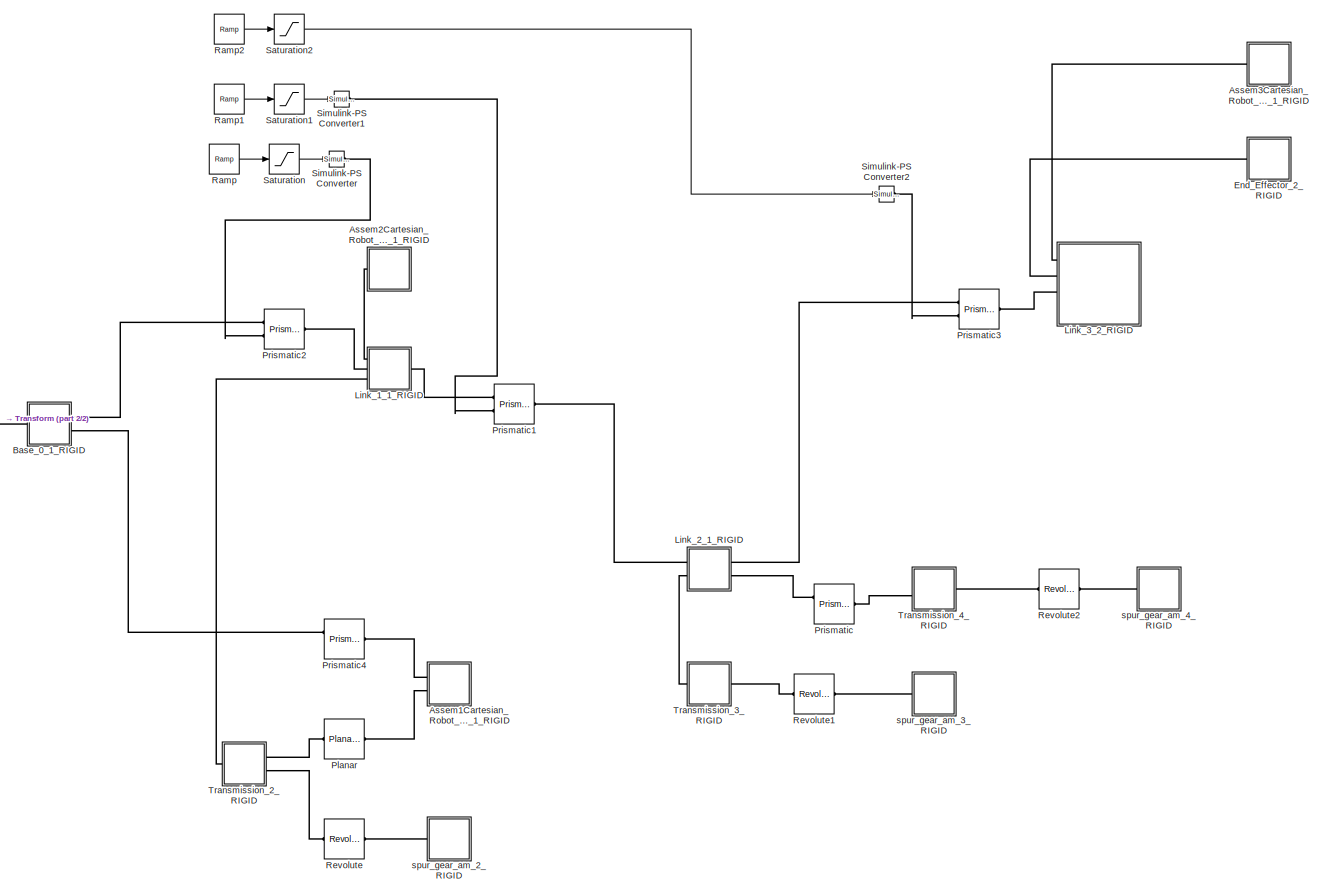
[diagram: root canvas - part 1/2, most of the canvas]
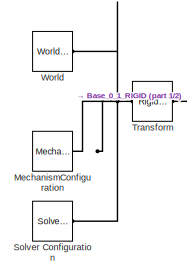
[diagram: root canvas - part 2/2, middle left region]
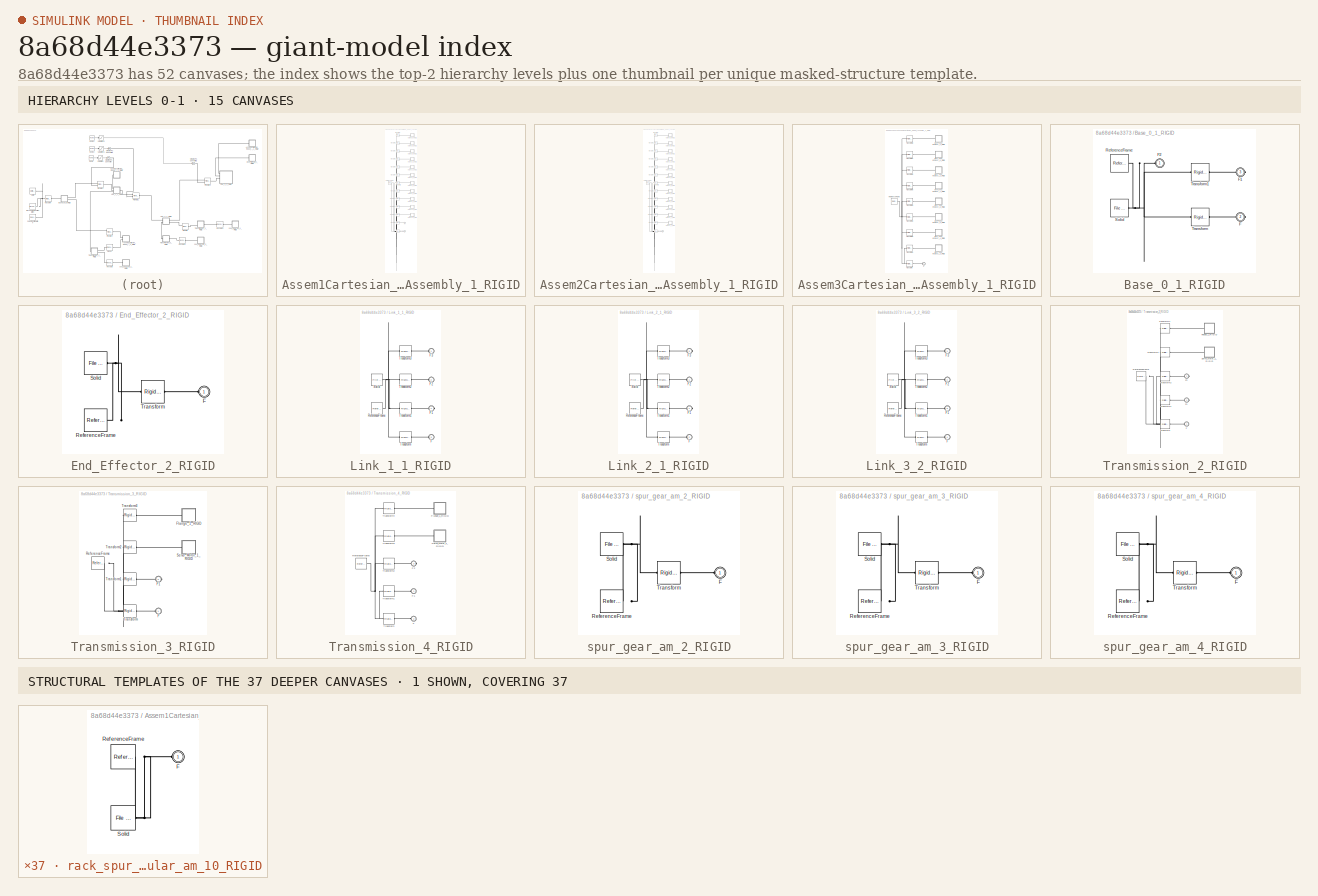
[diagram: thumbnail index - top-2 hierarchy levels (15 canvases) + 1 structural-template representatives of the remaining 37 canvases]
MODEL slx_8a68d44e3373
KIND model
CONFIG AbsTol = auto
CONFIG EnableMultiTasking = off
CONFIG FixedStep = auto
CONFIG MaxStep = auto
CONFIG MinStep = auto
CONFIG RelTol = 1e-3
CONFIG SampleTimeConstraint = Unconstrained
CONFIG Solver = VariableStepAuto
CONFIG SolverName = VariableStepAuto
CONFIG StartTime = 0.0
CONFIG StopTime = 10.0
WORKSPACE source: external: MATLAB File  (data not in archive)
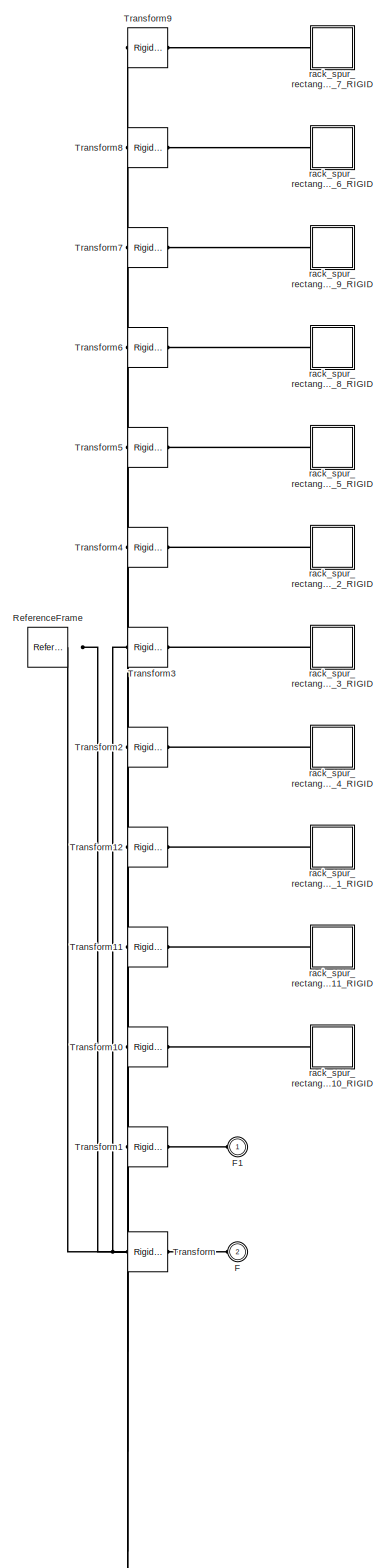
[diagram: Assem1Cartesian_Robot_Assembly_1_RIGID - part 1/1, most of the canvas]
BLOCK [SubSystem] Assem1Cartesian_Robot_Assembly_1_RIGID
  Ports = [0, 0, 0, 0, 0, 2]
  RequestExecContextInheritance = off
BLOCK [PMIOPort] Assem1Cartesian_Robot_Assembly_1_RIGID/F
  Port = 2
  Side = Left
BLOCK [PMIOPort] Assem1Cartesian_Robot_Assembly_1_RIGID/F1
  Side = Left
BLOCK [Reference] Assem1Cartesian_Robot_Assembly_1_RIGID/ReferenceFrame  REF=sm_lib/Frames and
Transforms/Reference
Frame
  Ports = [0, 0, 0, 0, 0, 0, 1]
  SourceBlock = sm_lib/Frames and\nTransforms/Reference\nFrame
  SourceProductBaseCode = MS
  SourceType = Reference\nFrame
BLOCK [Reference] Assem1Cartesian_Robot_Assembly_1_RIGID/Transform  REF=sm_lib/Frames and
Transforms/Rigid
Transform
  Ports = [0, 0, 0, 0, 0, 1, 1]
  SourceBlock = sm_lib/Frames and\nTransforms/Rigid\nTransform
  SourceProductBaseCode = MS
  SourceType = Rigid\nTransform
BLOCK [Reference] Assem1Cartesian_Robot_Assembly_1_RIGID/Transform1  REF=sm_lib/Frames and
Transforms/Rigid
Transform
  Ports = [0, 0, 0, 0, 0, 1, 1]
  SourceBlock = sm_lib/Frames and\nTransforms/Rigid\nTransform
  SourceProductBaseCode = MS
  SourceType = Rigid\nTransform
BLOCK [Reference] Assem1Cartesian_Robot_Assembly_1_RIGID/Transform10  REF=sm_lib/Frames and
Transforms/Rigid
Transform
  Ports = [0, 0, 0, 0, 0, 1, 1]
  SourceBlock = sm_lib/Frames and\nTransforms/Rigid\nTransform
  SourceProductBaseCode = MS
  SourceType = Rigid\nTransform
BLOCK [Reference] Assem1Cartesian_Robot_Assembly_1_RIGID/Transform11  REF=sm_lib/Frames and
Transforms/Rigid
Transform
  Ports = [0, 0, 0, 0, 0, 1, 1]
  SourceBlock = sm_lib/Frames and\nTransforms/Rigid\nTransform
  SourceProductBaseCode = MS
  SourceType = Rigid\nTransform
BLOCK [Reference] Assem1Cartesian_Robot_Assembly_1_RIGID/Transform12  REF=sm_lib/Frames and
Transforms/Rigid
Transform
  Ports = [0, 0, 0, 0, 0, 1, 1]
  SourceBlock = sm_lib/Frames and\nTransforms/Rigid\nTransform
  SourceProductBaseCode = MS
  SourceType = Rigid\nTransform
BLOCK [Reference] Assem1Cartesian_Robot_Assembly_1_RIGID/Transform2  REF=sm_lib/Frames and
Transforms/Rigid
Transform
  Ports = [0, 0, 0, 0, 0, 1, 1]
  SourceBlock = sm_lib/Frames and\nTransforms/Rigid\nTransform
  SourceProductBaseCode = MS
  SourceType = Rigid\nTransform
BLOCK [Reference] Assem1Cartesian_Robot_Assembly_1_RIGID/Transform3  REF=sm_lib/Frames and
Transforms/Rigid
Transform
  Ports = [0, 0, 0, 0, 0, 1, 1]
  SourceBlock = sm_lib/Frames and\nTransforms/Rigid\nTransform
  SourceProductBaseCode = MS
  SourceType = Rigid\nTransform
BLOCK [Reference] Assem1Cartesian_Robot_Assembly_1_RIGID/Transform4  REF=sm_lib/Frames and
Transforms/Rigid
Transform
  Ports = [0, 0, 0, 0, 0, 1, 1]
  SourceBlock = sm_lib/Frames and\nTransforms/Rigid\nTransform
  SourceProductBaseCode = MS
  SourceType = Rigid\nTransform
BLOCK [Reference] Assem1Cartesian_Robot_Assembly_1_RIGID/Transform5  REF=sm_lib/Frames and
Transforms/Rigid
Transform
  Ports = [0, 0, 0, 0, 0, 1, 1]
  SourceBlock = sm_lib/Frames and\nTransforms/Rigid\nTransform
  SourceProductBaseCode = MS
  SourceType = Rigid\nTransform
BLOCK [Reference] Assem1Cartesian_Robot_Assembly_1_RIGID/Transform6  REF=sm_lib/Frames and
Transforms/Rigid
Transform
  Ports = [0, 0, 0, 0, 0, 1, 1]
  SourceBlock = sm_lib/Frames and\nTransforms/Rigid\nTransform
  SourceProductBaseCode = MS
  SourceType = Rigid\nTransform
BLOCK [Reference] Assem1Cartesian_Robot_Assembly_1_RIGID/Transform7  REF=sm_lib/Frames and
Transforms/Rigid
Transform
  Ports = [0, 0, 0, 0, 0, 1, 1]
  SourceBlock = sm_lib/Frames and\nTransforms/Rigid\nTransform
  SourceProductBaseCode = MS
  SourceType = Rigid\nTransform
BLOCK [Reference] Assem1Cartesian_Robot_Assembly_1_RIGID/Transform8  REF=sm_lib/Frames and
Transforms/Rigid
Transform
  Ports = [0, 0, 0, 0, 0, 1, 1]
  SourceBlock = sm_lib/Frames and\nTransforms/Rigid\nTransform
  SourceProductBaseCode = MS
  SourceType = Rigid\nTransform
BLOCK [Reference] Assem1Cartesian_Robot_Assembly_1_RIGID/Transform9  REF=sm_lib/Frames and
Transforms/Rigid
Transform
  Ports = [0, 0, 0, 0, 0, 1, 1]
  SourceBlock = sm_lib/Frames and\nTransforms/Rigid\nTransform
  SourceProductBaseCode = MS
  SourceType = Rigid\nTransform
BLOCK [SubSystem] Assem1Cartesian_Robot_Assembly_1_RIGID/rack_spur_rectangular_am_10_RIGID
  Ports = [0, 0, 0, 0, 0, 1]
  RequestExecContextInheritance = off
BLOCK [PMIOPort] Assem1Cartesian_Robot_Assembly_1_RIGID/rack_spur_rectangular_am_10_RIGID/F
  Side = Left
BLOCK [Reference] Assem1Cartesian_Robot_Assembly_1_RIGID/rack_spur_rectangular_am_10_RIGID/ReferenceFrame  REF=sm_lib/Frames and
Transforms/Reference
Frame
  Ports = [0, 0, 0, 0, 0, 0, 1]
  SourceBlock = sm_lib/Frames and\nTransforms/Reference\nFrame
  SourceProductBaseCode = MS
  SourceType = Reference\nFrame
BLOCK [Reference] Assem1Cartesian_Robot_Assembly_1_RIGID/rack_spur_rectangular_am_10_RIGID/Solid  REF=sm_lib/Body Elements/File Solid
  Ports = [0, 0, 0, 0, 0, 0, 1]
  SourceBlock = sm_lib/Body Elements/File Solid
  SourceProductBaseCode = MS
  SourceType = File Solid
BLOCK [SubSystem] Assem1Cartesian_Robot_Assembly_1_RIGID/rack_spur_rectangular_am_11_RIGID
  Ports = [0, 0, 0, 0, 0, 1]
  RequestExecContextInheritance = off
BLOCK [PMIOPort] Assem1Cartesian_Robot_Assembly_1_RIGID/rack_spur_rectangular_am_11_RIGID/F
  Side = Left
BLOCK [Reference] Assem1Cartesian_Robot_Assembly_1_RIGID/rack_spur_rectangular_am_11_RIGID/ReferenceFrame  REF=sm_lib/Frames and
Transforms/Reference
Frame
  Ports = [0, 0, 0, 0, 0, 0, 1]
  SourceBlock = sm_lib/Frames and\nTransforms/Reference\nFrame
  SourceProductBaseCode = MS
  SourceType = Reference\nFrame
BLOCK [Reference] Assem1Cartesian_Robot_Assembly_1_RIGID/rack_spur_rectangular_am_11_RIGID/Solid  REF=sm_lib/Body Elements/File Solid
  Ports = [0, 0, 0, 0, 0, 0, 1]
  SourceBlock = sm_lib/Body Elements/File Solid
  SourceProductBaseCode = MS
  SourceType = File Solid
BLOCK [SubSystem] Assem1Cartesian_Robot_Assembly_1_RIGID/rack_spur_rectangular_am_1_RIGID
  Ports = [0, 0, 0, 0, 0, 1]
  RequestExecContextInheritance = off
BLOCK [PMIOPort] Assem1Cartesian_Robot_Assembly_1_RIGID/rack_spur_rectangular_am_1_RIGID/F
  Side = Left
BLOCK [Reference] Assem1Cartesian_Robot_Assembly_1_RIGID/rack_spur_rectangular_am_1_RIGID/ReferenceFrame  REF=sm_lib/Frames and
Transforms/Reference
Frame
  Ports = [0, 0, 0, 0, 0, 0, 1]
  SourceBlock = sm_lib/Frames and\nTransforms/Reference\nFrame
  SourceProductBaseCode = MS
  SourceType = Reference\nFrame
BLOCK [Reference] Assem1Cartesian_Robot_Assembly_1_RIGID/rack_spur_rectangular_am_1_RIGID/Solid  REF=sm_lib/Body Elements/File Solid
  Ports = [0, 0, 0, 0, 0, 0, 1]
  SourceBlock = sm_lib/Body Elements/File Solid
  SourceProductBaseCode = MS
  SourceType = File Solid
BLOCK [SubSystem] Assem1Cartesian_Robot_Assembly_1_RIGID/rack_spur_rectangular_am_2_RIGID
  Ports = [0, 0, 0, 0, 0, 1]
  RequestExecContextInheritance = off
BLOCK [PMIOPort] Assem1Cartesian_Robot_Assembly_1_RIGID/rack_spur_rectangular_am_2_RIGID/F
  Side = Left
BLOCK [Reference] Assem1Cartesian_Robot_Assembly_1_RIGID/rack_spur_rectangular_am_2_RIGID/ReferenceFrame  REF=sm_lib/Frames and
Transforms/Reference
Frame
  Ports = [0, 0, 0, 0, 0, 0, 1]
  SourceBlock = sm_lib/Frames and\nTransforms/Reference\nFrame
  SourceProductBaseCode = MS
  SourceType = Reference\nFrame
BLOCK [Reference] Assem1Cartesian_Robot_Assembly_1_RIGID/rack_spur_rectangular_am_2_RIGID/Solid  REF=sm_lib/Body Elements/File Solid
  Ports = [0, 0, 0, 0, 0, 0, 1]
  SourceBlock = sm_lib/Body Elements/File Solid
  SourceProductBaseCode = MS
  SourceType = File Solid
BLOCK [SubSystem] Assem1Cartesian_Robot_Assembly_1_RIGID/rack_spur_rectangular_am_3_RIGID
  Ports = [0, 0, 0, 0, 0, 1]
  RequestExecContextInheritance = off
BLOCK [PMIOPort] Assem1Cartesian_Robot_Assembly_1_RIGID/rack_spur_rectangular_am_3_RIGID/F
  Side = Left
BLOCK [Reference] Assem1Cartesian_Robot_Assembly_1_RIGID/rack_spur_rectangular_am_3_RIGID/ReferenceFrame  REF=sm_lib/Frames and
Transforms/Reference
Frame
  Ports = [0, 0, 0, 0, 0, 0, 1]
  SourceBlock = sm_lib/Frames and\nTransforms/Reference\nFrame
  SourceProductBaseCode = MS
  SourceType = Reference\nFrame
BLOCK [Reference] Assem1Cartesian_Robot_Assembly_1_RIGID/rack_spur_rectangular_am_3_RIGID/Solid  REF=sm_lib/Body Elements/File Solid
  Ports = [0, 0, 0, 0, 0, 0, 1]
  SourceBlock = sm_lib/Body Elements/File Solid
  SourceProductBaseCode = MS
  SourceType = File Solid
BLOCK [SubSystem] Assem1Cartesian_Robot_Assembly_1_RIGID/rack_spur_rectangular_am_4_RIGID
  Ports = [0, 0, 0, 0, 0, 1]
  RequestExecContextInheritance = off
BLOCK [PMIOPort] Assem1Cartesian_Robot_Assembly_1_RIGID/rack_spur_rectangular_am_4_RIGID/F
  Side = Left
BLOCK [Reference] Assem1Cartesian_Robot_Assembly_1_RIGID/rack_spur_rectangular_am_4_RIGID/ReferenceFrame  REF=sm_lib/Frames and
Transforms/Reference
Frame
  Ports = [0, 0, 0, 0, 0, 0, 1]
  SourceBlock = sm_lib/Frames and\nTransforms/Reference\nFrame
  SourceProductBaseCode = MS
  SourceType = Reference\nFrame
BLOCK [Reference] Assem1Cartesian_Robot_Assembly_1_RIGID/rack_spur_rectangular_am_4_RIGID/Solid  REF=sm_lib/Body Elements/File Solid
  Ports = [0, 0, 0, 0, 0, 0, 1]
  SourceBlock = sm_lib/Body Elements/File Solid
  SourceProductBaseCode = MS
  SourceType = File Solid
BLOCK [SubSystem] Assem1Cartesian_Robot_Assembly_1_RIGID/rack_spur_rectangular_am_5_RIGID
  Ports = [0, 0, 0, 0, 0, 1]
  RequestExecContextInheritance = off
BLOCK [PMIOPort] Assem1Cartesian_Robot_Assembly_1_RIGID/rack_spur_rectangular_am_5_RIGID/F
  Side = Left
BLOCK [Reference] Assem1Cartesian_Robot_Assembly_1_RIGID/rack_spur_rectangular_am_5_RIGID/ReferenceFrame  REF=sm_lib/Frames and
Transforms/Reference
Frame
  Ports = [0, 0, 0, 0, 0, 0, 1]
  SourceBlock = sm_lib/Frames and\nTransforms/Reference\nFrame
  SourceProductBaseCode = MS
  SourceType = Reference\nFrame
BLOCK [Reference] Assem1Cartesian_Robot_Assembly_1_RIGID/rack_spur_rectangular_am_5_RIGID/Solid  REF=sm_lib/Body Elements/File Solid
  Ports = [0, 0, 0, 0, 0, 0, 1]
  SourceBlock = sm_lib/Body Elements/File Solid
  SourceProductBaseCode = MS
  SourceType = File Solid
BLOCK [SubSystem] Assem1Cartesian_Robot_Assembly_1_RIGID/rack_spur_rectangular_am_6_RIGID
  Ports = [0, 0, 0, 0, 0, 1]
  RequestExecContextInheritance = off
BLOCK [PMIOPort] Assem1Cartesian_Robot_Assembly_1_RIGID/rack_spur_rectangular_am_6_RIGID/F
  Side = Left
BLOCK [Reference] Assem1Cartesian_Robot_Assembly_1_RIGID/rack_spur_rectangular_am_6_RIGID/ReferenceFrame  REF=sm_lib/Frames and
Transforms/Reference
Frame
  Ports = [0, 0, 0, 0, 0, 0, 1]
  SourceBlock = sm_lib/Frames and\nTransforms/Reference\nFrame
  SourceProductBaseCode = MS
  SourceType = Reference\nFrame
BLOCK [Reference] Assem1Cartesian_Robot_Assembly_1_RIGID/rack_spur_rectangular_am_6_RIGID/Solid  REF=sm_lib/Body Elements/File Solid
  Ports = [0, 0, 0, 0, 0, 0, 1]
  SourceBlock = sm_lib/Body Elements/File Solid
  SourceProductBaseCode = MS
  SourceType = File Solid
BLOCK [SubSystem] Assem1Cartesian_Robot_Assembly_1_RIGID/rack_spur_rectangular_am_7_RIGID
  Ports = [0, 0, 0, 0, 0, 1]
  RequestExecContextInheritance = off
BLOCK [PMIOPort] Assem1Cartesian_Robot_Assembly_1_RIGID/rack_spur_rectangular_am_7_RIGID/F
  Side = Left
BLOCK [Reference] Assem1Cartesian_Robot_Assembly_1_RIGID/rack_spur_rectangular_am_7_RIGID/ReferenceFrame  REF=sm_lib/Frames and
Transforms/Reference
Frame
  Ports = [0, 0, 0, 0, 0, 0, 1]
  SourceBlock = sm_lib/Frames and\nTransforms/Reference\nFrame
  SourceProductBaseCode = MS
  SourceType = Reference\nFrame
BLOCK [Reference] Assem1Cartesian_Robot_Assembly_1_RIGID/rack_spur_rectangular_am_7_RIGID/Solid  REF=sm_lib/Body Elements/File Solid
  Ports = [0, 0, 0, 0, 0, 0, 1]
  SourceBlock = sm_lib/Body Elements/File Solid
  SourceProductBaseCode = MS
  SourceType = File Solid
BLOCK [SubSystem] Assem1Cartesian_Robot_Assembly_1_RIGID/rack_spur_rectangular_am_8_RIGID
  Ports = [0, 0, 0, 0, 0, 1]
  RequestExecContextInheritance = off
BLOCK [PMIOPort] Assem1Cartesian_Robot_Assembly_1_RIGID/rack_spur_rectangular_am_8_RIGID/F
  Side = Left
BLOCK [Reference] Assem1Cartesian_Robot_Assembly_1_RIGID/rack_spur_rectangular_am_8_RIGID/ReferenceFrame  REF=sm_lib/Frames and
Transforms/Reference
Frame
  Ports = [0, 0, 0, 0, 0, 0, 1]
  SourceBlock = sm_lib/Frames and\nTransforms/Reference\nFrame
  SourceProductBaseCode = MS
  SourceType = Reference\nFrame
BLOCK [Reference] Assem1Cartesian_Robot_Assembly_1_RIGID/rack_spur_rectangular_am_8_RIGID/Solid  REF=sm_lib/Body Elements/File Solid
  Ports = [0, 0, 0, 0, 0, 0, 1]
  SourceBlock = sm_lib/Body Elements/File Solid
  SourceProductBaseCode = MS
  SourceType = File Solid
BLOCK [SubSystem] Assem1Cartesian_Robot_Assembly_1_RIGID/rack_spur_rectangular_am_9_RIGID
  Ports = [0, 0, 0, 0, 0, 1]
  RequestExecContextInheritance = off
BLOCK [PMIOPort] Assem1Cartesian_Robot_Assembly_1_RIGID/rack_spur_rectangular_am_9_RIGID/F
  Side = Left
BLOCK [Reference] Assem1Cartesian_Robot_Assembly_1_RIGID/rack_spur_rectangular_am_9_RIGID/ReferenceFrame  REF=sm_lib/Frames and
Transforms/Reference
Frame
  Ports = [0, 0, 0, 0, 0, 0, 1]
  SourceBlock = sm_lib/Frames and\nTransforms/Reference\nFrame
  SourceProductBaseCode = MS
  SourceType = Reference\nFrame
BLOCK [Reference] Assem1Cartesian_Robot_Assembly_1_RIGID/rack_spur_rectangular_am_9_RIGID/Solid  REF=sm_lib/Body Elements/File Solid
  Ports = [0, 0, 0, 0, 0, 0, 1]
  SourceBlock = sm_lib/Body Elements/File Solid
  SourceProductBaseCode = MS
  SourceType = File Solid
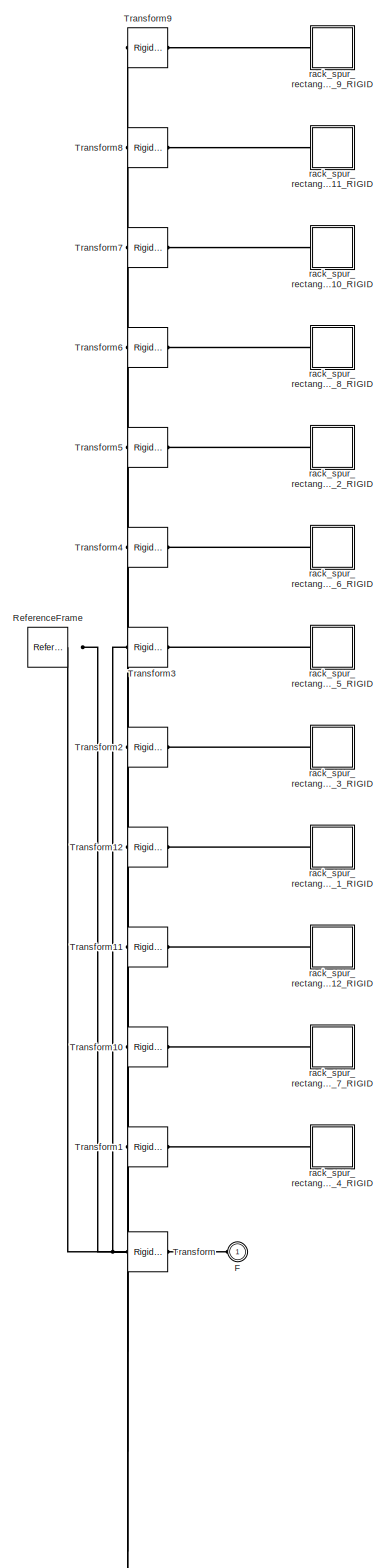
[diagram: Assem2Cartesian_Robot_Assembly_1_RIGID - part 1/1, most of the canvas]
BLOCK [SubSystem] Assem2Cartesian_Robot_Assembly_1_RIGID
  Ports = [0, 0, 0, 0, 0, 1]
  RequestExecContextInheritance = off
BLOCK [PMIOPort] Assem2Cartesian_Robot_Assembly_1_RIGID/F
  Side = Left
BLOCK [Reference] Assem2Cartesian_Robot_Assembly_1_RIGID/ReferenceFrame  REF=sm_lib/Frames and
Transforms/Reference
Frame
  Ports = [0, 0, 0, 0, 0, 0, 1]
  SourceBlock = sm_lib/Frames and\nTransforms/Reference\nFrame
  SourceProductBaseCode = MS
  SourceType = Reference\nFrame
BLOCK [Reference] Assem2Cartesian_Robot_Assembly_1_RIGID/Transform  REF=sm_lib/Frames and
Transforms/Rigid
Transform
  Ports = [0, 0, 0, 0, 0, 1, 1]
  SourceBlock = sm_lib/Frames and\nTransforms/Rigid\nTransform
  SourceProductBaseCode = MS
  SourceType = Rigid\nTransform
BLOCK [Reference] Assem2Cartesian_Robot_Assembly_1_RIGID/Transform1  REF=sm_lib/Frames and
Transforms/Rigid
Transform
  Ports = [0, 0, 0, 0, 0, 1, 1]
  SourceBlock = sm_lib/Frames and\nTransforms/Rigid\nTransform
  SourceProductBaseCode = MS
  SourceType = Rigid\nTransform
BLOCK [Reference] Assem2Cartesian_Robot_Assembly_1_RIGID/Transform10  REF=sm_lib/Frames and
Transforms/Rigid
Transform
  Ports = [0, 0, 0, 0, 0, 1, 1]
  SourceBlock = sm_lib/Frames and\nTransforms/Rigid\nTransform
  SourceProductBaseCode = MS
  SourceType = Rigid\nTransform
BLOCK [Reference] Assem2Cartesian_Robot_Assembly_1_RIGID/Transform11  REF=sm_lib/Frames and
Transforms/Rigid
Transform
  Ports = [0, 0, 0, 0, 0, 1, 1]
  SourceBlock = sm_lib/Frames and\nTransforms/Rigid\nTransform
  SourceProductBaseCode = MS
  SourceType = Rigid\nTransform
BLOCK [Reference] Assem2Cartesian_Robot_Assembly_1_RIGID/Transform12  REF=sm_lib/Frames and
Transforms/Rigid
Transform
  Ports = [0, 0, 0, 0, 0, 1, 1]
  SourceBlock = sm_lib/Frames and\nTransforms/Rigid\nTransform
  SourceProductBaseCode = MS
  SourceType = Rigid\nTransform
BLOCK [Reference] Assem2Cartesian_Robot_Assembly_1_RIGID/Transform2  REF=sm_lib/Frames and
Transforms/Rigid
Transform
  Ports = [0, 0, 0, 0, 0, 1, 1]
  SourceBlock = sm_lib/Frames and\nTransforms/Rigid\nTransform
  SourceProductBaseCode = MS
  SourceType = Rigid\nTransform
BLOCK [Reference] Assem2Cartesian_Robot_Assembly_1_RIGID/Transform3  REF=sm_lib/Frames and
Transforms/Rigid
Transform
  Ports = [0, 0, 0, 0, 0, 1, 1]
  SourceBlock = sm_lib/Frames and\nTransforms/Rigid\nTransform
  SourceProductBaseCode = MS
  SourceType = Rigid\nTransform
BLOCK [Reference] Assem2Cartesian_Robot_Assembly_1_RIGID/Transform4  REF=sm_lib/Frames and
Transforms/Rigid
Transform
  Ports = [0, 0, 0, 0, 0, 1, 1]
  SourceBlock = sm_lib/Frames and\nTransforms/Rigid\nTransform
  SourceProductBaseCode = MS
  SourceType = Rigid\nTransform
BLOCK [Reference] Assem2Cartesian_Robot_Assembly_1_RIGID/Transform5  REF=sm_lib/Frames and
Transforms/Rigid
Transform
  Ports = [0, 0, 0, 0, 0, 1, 1]
  SourceBlock = sm_lib/Frames and\nTransforms/Rigid\nTransform
  SourceProductBaseCode = MS
  SourceType = Rigid\nTransform
BLOCK [Reference] Assem2Cartesian_Robot_Assembly_1_RIGID/Transform6  REF=sm_lib/Frames and
Transforms/Rigid
Transform
  Ports = [0, 0, 0, 0, 0, 1, 1]
  SourceBlock = sm_lib/Frames and\nTransforms/Rigid\nTransform
  SourceProductBaseCode = MS
  SourceType = Rigid\nTransform
BLOCK [Reference] Assem2Cartesian_Robot_Assembly_1_RIGID/Transform7  REF=sm_lib/Frames and
Transforms/Rigid
Transform
  Ports = [0, 0, 0, 0, 0, 1, 1]
  SourceBlock = sm_lib/Frames and\nTransforms/Rigid\nTransform
  SourceProductBaseCode = MS
  SourceType = Rigid\nTransform
BLOCK [Reference] Assem2Cartesian_Robot_Assembly_1_RIGID/Transform8  REF=sm_lib/Frames and
Transforms/Rigid
Transform
  Ports = [0, 0, 0, 0, 0, 1, 1]
  SourceBlock = sm_lib/Frames and\nTransforms/Rigid\nTransform
  SourceProductBaseCode = MS
  SourceType = Rigid\nTransform
BLOCK [Reference] Assem2Cartesian_Robot_Assembly_1_RIGID/Transform9  REF=sm_lib/Frames and
Transforms/Rigid
Transform
  Ports = [0, 0, 0, 0, 0, 1, 1]
  SourceBlock = sm_lib/Frames and\nTransforms/Rigid\nTransform
  SourceProductBaseCode = MS
  SourceType = Rigid\nTransform
BLOCK [SubSystem] Assem2Cartesian_Robot_Assembly_1_RIGID/rack_spur_rectangular_am_10_RIGID
  Ports = [0, 0, 0, 0, 0, 1]
  RequestExecContextInheritance = off
BLOCK [PMIOPort] Assem2Cartesian_Robot_Assembly_1_RIGID/rack_spur_rectangular_am_10_RIGID/F
  Side = Left
BLOCK [Reference] Assem2Cartesian_Robot_Assembly_1_RIGID/rack_spur_rectangular_am_10_RIGID/ReferenceFrame  REF=sm_lib/Frames and
Transforms/Reference
Frame
  Ports = [0, 0, 0, 0, 0, 0, 1]
  SourceBlock = sm_lib/Frames and\nTransforms/Reference\nFrame
  SourceProductBaseCode = MS
  SourceType = Reference\nFrame
BLOCK [Reference] Assem2Cartesian_Robot_Assembly_1_RIGID/rack_spur_rectangular_am_10_RIGID/Solid  REF=sm_lib/Body Elements/File Solid
  Ports = [0, 0, 0, 0, 0, 0, 1]
  SourceBlock = sm_lib/Body Elements/File Solid
  SourceProductBaseCode = MS
  SourceType = File Solid
BLOCK [SubSystem] Assem2Cartesian_Robot_Assembly_1_RIGID/rack_spur_rectangular_am_11_RIGID
  Ports = [0, 0, 0, 0, 0, 1]
  RequestExecContextInheritance = off
BLOCK [PMIOPort] Assem2Cartesian_Robot_Assembly_1_RIGID/rack_spur_rectangular_am_11_RIGID/F
  Side = Left
BLOCK [Reference] Assem2Cartesian_Robot_Assembly_1_RIGID/rack_spur_rectangular_am_11_RIGID/ReferenceFrame  REF=sm_lib/Frames and
Transforms/Reference
Frame
  Ports = [0, 0, 0, 0, 0, 0, 1]
  SourceBlock = sm_lib/Frames and\nTransforms/Reference\nFrame
  SourceProductBaseCode = MS
  SourceType = Reference\nFrame
BLOCK [Reference] Assem2Cartesian_Robot_Assembly_1_RIGID/rack_spur_rectangular_am_11_RIGID/Solid  REF=sm_lib/Body Elements/File Solid
  Ports = [0, 0, 0, 0, 0, 0, 1]
  SourceBlock = sm_lib/Body Elements/File Solid
  SourceProductBaseCode = MS
  SourceType = File Solid
BLOCK [SubSystem] Assem2Cartesian_Robot_Assembly_1_RIGID/rack_spur_rectangular_am_12_RIGID
  Ports = [0, 0, 0, 0, 0, 1]
  RequestExecContextInheritance = off
BLOCK [PMIOPort] Assem2Cartesian_Robot_Assembly_1_RIGID/rack_spur_rectangular_am_12_RIGID/F
  Side = Left
BLOCK [Reference] Assem2Cartesian_Robot_Assembly_1_RIGID/rack_spur_rectangular_am_12_RIGID/ReferenceFrame  REF=sm_lib/Frames and
Transforms/Reference
Frame
  Ports = [0, 0, 0, 0, 0, 0, 1]
  SourceBlock = sm_lib/Frames and\nTransforms/Reference\nFrame
  SourceProductBaseCode = MS
  SourceType = Reference\nFrame
BLOCK [Reference] Assem2Cartesian_Robot_Assembly_1_RIGID/rack_spur_rectangular_am_12_RIGID/Solid  REF=sm_lib/Body Elements/File Solid
  Ports = [0, 0, 0, 0, 0, 0, 1]
  SourceBlock = sm_lib/Body Elements/File Solid
  SourceProductBaseCode = MS
  SourceType = File Solid
BLOCK [SubSystem] Assem2Cartesian_Robot_Assembly_1_RIGID/rack_spur_rectangular_am_1_RIGID
  Ports = [0, 0, 0, 0, 0, 1]
  RequestExecContextInheritance = off
BLOCK [PMIOPort] Assem2Cartesian_Robot_Assembly_1_RIGID/rack_spur_rectangular_am_1_RIGID/F
  Side = Left
BLOCK [Reference] Assem2Cartesian_Robot_Assembly_1_RIGID/rack_spur_rectangular_am_1_RIGID/ReferenceFrame  REF=sm_lib/Frames and
Transforms/Reference
Frame
  Ports = [0, 0, 0, 0, 0, 0, 1]
  SourceBlock = sm_lib/Frames and\nTransforms/Reference\nFrame
  SourceProductBaseCode = MS
  SourceType = Reference\nFrame
BLOCK [Reference] Assem2Cartesian_Robot_Assembly_1_RIGID/rack_spur_rectangular_am_1_RIGID/Solid  REF=sm_lib/Body Elements/File Solid
  Ports = [0, 0, 0, 0, 0, 0, 1]
  SourceBlock = sm_lib/Body Elements/File Solid
  SourceProductBaseCode = MS
  SourceType = File Solid
BLOCK [SubSystem] Assem2Cartesian_Robot_Assembly_1_RIGID/rack_spur_rectangular_am_2_RIGID
  Ports = [0, 0, 0, 0, 0, 1]
  RequestExecContextInheritance = off
BLOCK [PMIOPort] Assem2Cartesian_Robot_Assembly_1_RIGID/rack_spur_rectangular_am_2_RIGID/F
  Side = Left
BLOCK [Reference] Assem2Cartesian_Robot_Assembly_1_RIGID/rack_spur_rectangular_am_2_RIGID/ReferenceFrame  REF=sm_lib/Frames and
Transforms/Reference
Frame
  Ports = [0, 0, 0, 0, 0, 0, 1]
  SourceBlock = sm_lib/Frames and\nTransforms/Reference\nFrame
  SourceProductBaseCode = MS
  SourceType = Reference\nFrame
BLOCK [Reference] Assem2Cartesian_Robot_Assembly_1_RIGID/rack_spur_rectangular_am_2_RIGID/Solid  REF=sm_lib/Body Elements/File Solid
  Ports = [0, 0, 0, 0, 0, 0, 1]
  SourceBlock = sm_lib/Body Elements/File Solid
  SourceProductBaseCode = MS
  SourceType = File Solid
BLOCK [SubSystem] Assem2Cartesian_Robot_Assembly_1_RIGID/rack_spur_rectangular_am_3_RIGID
  Ports = [0, 0, 0, 0, 0, 1]
  RequestExecContextInheritance = off
BLOCK [PMIOPort] Assem2Cartesian_Robot_Assembly_1_RIGID/rack_spur_rectangular_am_3_RIGID/F
  Side = Left
BLOCK [Reference] Assem2Cartesian_Robot_Assembly_1_RIGID/rack_spur_rectangular_am_3_RIGID/ReferenceFrame  REF=sm_lib/Frames and
Transforms/Reference
Frame
  Ports = [0, 0, 0, 0, 0, 0, 1]
  SourceBlock = sm_lib/Frames and\nTransforms/Reference\nFrame
  SourceProductBaseCode = MS
  SourceType = Reference\nFrame
BLOCK [Reference] Assem2Cartesian_Robot_Assembly_1_RIGID/rack_spur_rectangular_am_3_RIGID/Solid  REF=sm_lib/Body Elements/File Solid
  Ports = [0, 0, 0, 0, 0, 0, 1]
  SourceBlock = sm_lib/Body Elements/File Solid
  SourceProductBaseCode = MS
  SourceType = File Solid
BLOCK [SubSystem] Assem2Cartesian_Robot_Assembly_1_RIGID/rack_spur_rectangular_am_4_RIGID
  Ports = [0, 0, 0, 0, 0, 1]
  RequestExecContextInheritance = off
BLOCK [PMIOPort] Assem2Cartesian_Robot_Assembly_1_RIGID/rack_spur_rectangular_am_4_RIGID/F
  Side = Left
BLOCK [Reference] Assem2Cartesian_Robot_Assembly_1_RIGID/rack_spur_rectangular_am_4_RIGID/ReferenceFrame  REF=sm_lib/Frames and
Transforms/Reference
Frame
  Ports = [0, 0, 0, 0, 0, 0, 1]
  SourceBlock = sm_lib/Frames and\nTransforms/Reference\nFrame
  SourceProductBaseCode = MS
  SourceType = Reference\nFrame
BLOCK [Reference] Assem2Cartesian_Robot_Assembly_1_RIGID/rack_spur_rectangular_am_4_RIGID/Solid  REF=sm_lib/Body Elements/File Solid
  Ports = [0, 0, 0, 0, 0, 0, 1]
  SourceBlock = sm_lib/Body Elements/File Solid
  SourceProductBaseCode = MS
  SourceType = File Solid
BLOCK [SubSystem] Assem2Cartesian_Robot_Assembly_1_RIGID/rack_spur_rectangular_am_5_RIGID
  Ports = [0, 0, 0, 0, 0, 1]
  RequestExecContextInheritance = off
BLOCK [PMIOPort] Assem2Cartesian_Robot_Assembly_1_RIGID/rack_spur_rectangular_am_5_RIGID/F
  Side = Left
BLOCK [Reference] Assem2Cartesian_Robot_Assembly_1_RIGID/rack_spur_rectangular_am_5_RIGID/ReferenceFrame  REF=sm_lib/Frames and
Transforms/Reference
Frame
  Ports = [0, 0, 0, 0, 0, 0, 1]
  SourceBlock = sm_lib/Frames and\nTransforms/Reference\nFrame
  SourceProductBaseCode = MS
  SourceType = Reference\nFrame
BLOCK [Reference] Assem2Cartesian_Robot_Assembly_1_RIGID/rack_spur_rectangular_am_5_RIGID/Solid  REF=sm_lib/Body Elements/File Solid
  Ports = [0, 0, 0, 0, 0, 0, 1]
  SourceBlock = sm_lib/Body Elements/File Solid
  SourceProductBaseCode = MS
  SourceType = File Solid
BLOCK [SubSystem] Assem2Cartesian_Robot_Assembly_1_RIGID/rack_spur_rectangular_am_6_RIGID
  Ports = [0, 0, 0, 0, 0, 1]
  RequestExecContextInheritance = off
BLOCK [PMIOPort] Assem2Cartesian_Robot_Assembly_1_RIGID/rack_spur_rectangular_am_6_RIGID/F
  Side = Left
BLOCK [Reference] Assem2Cartesian_Robot_Assembly_1_RIGID/rack_spur_rectangular_am_6_RIGID/ReferenceFrame  REF=sm_lib/Frames and
Transforms/Reference
Frame
  Ports = [0, 0, 0, 0, 0, 0, 1]
  SourceBlock = sm_lib/Frames and\nTransforms/Reference\nFrame
  SourceProductBaseCode = MS
  SourceType = Reference\nFrame
BLOCK [Reference] Assem2Cartesian_Robot_Assembly_1_RIGID/rack_spur_rectangular_am_6_RIGID/Solid  REF=sm_lib/Body Elements/File Solid
  Ports = [0, 0, 0, 0, 0, 0, 1]
  SourceBlock = sm_lib/Body Elements/File Solid
  SourceProductBaseCode = MS
  SourceType = File Solid
BLOCK [SubSystem] Assem2Cartesian_Robot_Assembly_1_RIGID/rack_spur_rectangular_am_7_RIGID
  Ports = [0, 0, 0, 0, 0, 1]
  RequestExecContextInheritance = off
BLOCK [PMIOPort] Assem2Cartesian_Robot_Assembly_1_RIGID/rack_spur_rectangular_am_7_RIGID/F
  Side = Left
BLOCK [Reference] Assem2Cartesian_Robot_Assembly_1_RIGID/rack_spur_rectangular_am_7_RIGID/ReferenceFrame  REF=sm_lib/Frames and
Transforms/Reference
Frame
  Ports = [0, 0, 0, 0, 0, 0, 1]
  SourceBlock = sm_lib/Frames and\nTransforms/Reference\nFrame
  SourceProductBaseCode = MS
  SourceType = Reference\nFrame
BLOCK [Reference] Assem2Cartesian_Robot_Assembly_1_RIGID/rack_spur_rectangular_am_7_RIGID/Solid  REF=sm_lib/Body Elements/File Solid
  Ports = [0, 0, 0, 0, 0, 0, 1]
  SourceBlock = sm_lib/Body Elements/File Solid
  SourceProductBaseCode = MS
  SourceType = File Solid
BLOCK [SubSystem] Assem2Cartesian_Robot_Assembly_1_RIGID/rack_spur_rectangular_am_8_RIGID
  Ports = [0, 0, 0, 0, 0, 1]
  RequestExecContextInheritance = off
BLOCK [PMIOPort] Assem2Cartesian_Robot_Assembly_1_RIGID/rack_spur_rectangular_am_8_RIGID/F
  Side = Left
BLOCK [Reference] Assem2Cartesian_Robot_Assembly_1_RIGID/rack_spur_rectangular_am_8_RIGID/ReferenceFrame  REF=sm_lib/Frames and
Transforms/Reference
Frame
  Ports = [0, 0, 0, 0, 0, 0, 1]
  SourceBlock = sm_lib/Frames and\nTransforms/Reference\nFrame
  SourceProductBaseCode = MS
  SourceType = Reference\nFrame
BLOCK [Reference] Assem2Cartesian_Robot_Assembly_1_RIGID/rack_spur_rectangular_am_8_RIGID/Solid  REF=sm_lib/Body Elements/File Solid
  Ports = [0, 0, 0, 0, 0, 0, 1]
  SourceBlock = sm_lib/Body Elements/File Solid
  SourceProductBaseCode = MS
  SourceType = File Solid
BLOCK [SubSystem] Assem2Cartesian_Robot_Assembly_1_RIGID/rack_spur_rectangular_am_9_RIGID
  Ports = [0, 0, 0, 0, 0, 1]
  RequestExecContextInheritance = off
BLOCK [PMIOPort] Assem2Cartesian_Robot_Assembly_1_RIGID/rack_spur_rectangular_am_9_RIGID/F
  Side = Left
BLOCK [Reference] Assem2Cartesian_Robot_Assembly_1_RIGID/rack_spur_rectangular_am_9_RIGID/ReferenceFrame  REF=sm_lib/Frames and
Transforms/Reference
Frame
  Ports = [0, 0, 0, 0, 0, 0, 1]
  SourceBlock = sm_lib/Frames and\nTransforms/Reference\nFrame
  SourceProductBaseCode = MS
  SourceType = Reference\nFrame
BLOCK [Reference] Assem2Cartesian_Robot_Assembly_1_RIGID/rack_spur_rectangular_am_9_RIGID/Solid  REF=sm_lib/Body Elements/File Solid
  Ports = [0, 0, 0, 0, 0, 0, 1]
  SourceBlock = sm_lib/Body Elements/File Solid
  SourceProductBaseCode = MS
  SourceType = File Solid
BLOCK [SubSystem] Assem3Cartesian_Robot_Assembly_1_RIGID
  Ports = [0, 0, 0, 0, 0, 1]
  RequestExecContextInheritance = off
BLOCK [PMIOPort] Assem3Cartesian_Robot_Assembly_1_RIGID/F
  Side = Left
BLOCK [Reference] Assem3Cartesian_Robot_Assembly_1_RIGID/ReferenceFrame  REF=sm_lib/Frames and
Transforms/Reference
Frame
  Ports = [0, 0, 0, 0, 0, 0, 1]
  SourceBlock = sm_lib/Frames and\nTransforms/Reference\nFrame
  SourceProductBaseCode = MS
  SourceType = Reference\nFrame
BLOCK [Reference] Assem3Cartesian_Robot_Assembly_1_RIGID/Transform  REF=sm_lib/Frames and
Transforms/Rigid
Transform
  Ports = [0, 0, 0, 0, 0, 1, 1]
  SourceBlock = sm_lib/Frames and\nTransforms/Rigid\nTransform
  SourceProductBaseCode = MS
  SourceType = Rigid\nTransform
BLOCK [Reference] Assem3Cartesian_Robot_Assembly_1_RIGID/Transform1  REF=sm_lib/Frames and
Transforms/Rigid
Transform
  Ports = [0, 0, 0, 0, 0, 1, 1]
  SourceBlock = sm_lib/Frames and\nTransforms/Rigid\nTransform
  SourceProductBaseCode = MS
  SourceType = Rigid\nTransform
BLOCK [Reference] Assem3Cartesian_Robot_Assembly_1_RIGID/Transform2  REF=sm_lib/Frames and
Transforms/Rigid
Transform
  Ports = [0, 0, 0, 0, 0, 1, 1]
  SourceBlock = sm_lib/Frames and\nTransforms/Rigid\nTransform
  SourceProductBaseCode = MS
  SourceType = Rigid\nTransform
BLOCK [Reference] Assem3Cartesian_Robot_Assembly_1_RIGID/Transform3  REF=sm_lib/Frames and
Transforms/Rigid
Transform
  Ports = [0, 0, 0, 0, 0, 1, 1]
  SourceBlock = sm_lib/Frames and\nTransforms/Rigid\nTransform
  SourceProductBaseCode = MS
  SourceType = Rigid\nTransform
BLOCK [Reference] Assem3Cartesian_Robot_Assembly_1_RIGID/Transform4  REF=sm_lib/Frames and
Transforms/Rigid
Transform
  Ports = [0, 0, 0, 0, 0, 1, 1]
  SourceBlock = sm_lib/Frames and\nTransforms/Rigid\nTransform
  SourceProductBaseCode = MS
  SourceType = Rigid\nTransform
BLOCK [Reference] Assem3Cartesian_Robot_Assembly_1_RIGID/Transform5  REF=sm_lib/Frames and
Transforms/Rigid
Transform
  Ports = [0, 0, 0, 0, 0, 1, 1]
  SourceBlock = sm_lib/Frames and\nTransforms/Rigid\nTransform
  SourceProductBaseCode = MS
  SourceType = Rigid\nTransform
BLOCK [Reference] Assem3Cartesian_Robot_Assembly_1_RIGID/Transform6  REF=sm_lib/Frames and
Transforms/Rigid
Transform
  Ports = [0, 0, 0, 0, 0, 1, 1]
  SourceBlock = sm_lib/Frames and\nTransforms/Rigid\nTransform
  SourceProductBaseCode = MS
  SourceType = Rigid\nTransform
BLOCK [Reference] Assem3Cartesian_Robot_Assembly_1_RIGID/Transform7  REF=sm_lib/Frames and
Transforms/Rigid
Transform
  Ports = [0, 0, 0, 0, 0, 1, 1]
  SourceBlock = sm_lib/Frames and\nTransforms/Rigid\nTransform
  SourceProductBaseCode = MS
  SourceType = Rigid\nTransform
BLOCK [Reference] Assem3Cartesian_Robot_Assembly_1_RIGID/Transform8  REF=sm_lib/Frames and
Transforms/Rigid
Transform
  Ports = [0, 0, 0, 0, 0, 1, 1]
  SourceBlock = sm_lib/Frames and\nTransforms/Rigid\nTransform
  SourceProductBaseCode = MS
  SourceType = Rigid\nTransform
BLOCK [SubSystem] Assem3Cartesian_Robot_Assembly_1_RIGID/rack_spur_rectangular_am_1_RIGID
  Ports = [0, 0, 0, 0, 0, 1]
  RequestExecContextInheritance = off
BLOCK [PMIOPort] Assem3Cartesian_Robot_Assembly_1_RIGID/rack_spur_rectangular_am_1_RIGID/F
  Side = Left
BLOCK [Reference] Assem3Cartesian_Robot_Assembly_1_RIGID/rack_spur_rectangular_am_1_RIGID/ReferenceFrame  REF=sm_lib/Frames and
Transforms/Reference
Frame
  Ports = [0, 0, 0, 0, 0, 0, 1]
  SourceBlock = sm_lib/Frames and\nTransforms/Reference\nFrame
  SourceProductBaseCode = MS
  SourceType = Reference\nFrame
BLOCK [Reference] Assem3Cartesian_Robot_Assembly_1_RIGID/rack_spur_rectangular_am_1_RIGID/Solid  REF=sm_lib/Body Elements/File Solid
  Ports = [0, 0, 0, 0, 0, 0, 1]
  SourceBlock = sm_lib/Body Elements/File Solid
  SourceProductBaseCode = MS
  SourceType = File Solid
BLOCK [SubSystem] Assem3Cartesian_Robot_Assembly_1_RIGID/rack_spur_rectangular_am_2_RIGID
  Ports = [0, 0, 0, 0, 0, 1]
  RequestExecContextInheritance = off
BLOCK [PMIOPort] Assem3Cartesian_Robot_Assembly_1_RIGID/rack_spur_rectangular_am_2_RIGID/F
  Side = Left
BLOCK [Reference] Assem3Cartesian_Robot_Assembly_1_RIGID/rack_spur_rectangular_am_2_RIGID/ReferenceFrame  REF=sm_lib/Frames and
Transforms/Reference
Frame
  Ports = [0, 0, 0, 0, 0, 0, 1]
  SourceBlock = sm_lib/Frames and\nTransforms/Reference\nFrame
  SourceProductBaseCode = MS
  SourceType = Reference\nFrame
BLOCK [Reference] Assem3Cartesian_Robot_Assembly_1_RIGID/rack_spur_rectangular_am_2_RIGID/Solid  REF=sm_lib/Body Elements/File Solid
  Ports = [0, 0, 0, 0, 0, 0, 1]
  SourceBlock = sm_lib/Body Elements/File Solid
  SourceProductBaseCode = MS
  SourceType = File Solid
BLOCK [SubSystem] Assem3Cartesian_Robot_Assembly_1_RIGID/rack_spur_rectangular_am_3_RIGID
  Ports = [0, 0, 0, 0, 0, 1]
  RequestExecContextInheritance = off
BLOCK [PMIOPort] Assem3Cartesian_Robot_Assembly_1_RIGID/rack_spur_rectangular_am_3_RIGID/F
  Side = Left
BLOCK [Reference] Assem3Cartesian_Robot_Assembly_1_RIGID/rack_spur_rectangular_am_3_RIGID/ReferenceFrame  REF=sm_lib/Frames and
Transforms/Reference
Frame
  Ports = [0, 0, 0, 0, 0, 0, 1]
  SourceBlock = sm_lib/Frames and\nTransforms/Reference\nFrame
  SourceProductBaseCode = MS
  SourceType = Reference\nFrame
BLOCK [Reference] Assem3Cartesian_Robot_Assembly_1_RIGID/rack_spur_rectangular_am_3_RIGID/Solid  REF=sm_lib/Body Elements/File Solid
  Ports = [0, 0, 0, 0, 0, 0, 1]
  SourceBlock = sm_lib/Body Elements/File Solid
  SourceProductBaseCode = MS
  SourceType = File Solid
BLOCK [SubSystem] Assem3Cartesian_Robot_Assembly_1_RIGID/rack_spur_rectangular_am_4_RIGID
  Ports = [0, 0, 0, 0, 0, 1]
  RequestExecContextInheritance = off
BLOCK [PMIOPort] Assem3Cartesian_Robot_Assembly_1_RIGID/rack_spur_rectangular_am_4_RIGID/F
  Side = Left
BLOCK [Reference] Assem3Cartesian_Robot_Assembly_1_RIGID/rack_spur_rectangular_am_4_RIGID/ReferenceFrame  REF=sm_lib/Frames and
Transforms/Reference
Frame
  Ports = [0, 0, 0, 0, 0, 0, 1]
  SourceBlock = sm_lib/Frames and\nTransforms/Reference\nFrame
  SourceProductBaseCode = MS
  SourceType = Reference\nFrame
BLOCK [Reference] Assem3Cartesian_Robot_Assembly_1_RIGID/rack_spur_rectangular_am_4_RIGID/Solid  REF=sm_lib/Body Elements/File Solid
  Ports = [0, 0, 0, 0, 0, 0, 1]
  SourceBlock = sm_lib/Body Elements/File Solid
  SourceProductBaseCode = MS
  SourceType = File Solid
BLOCK [SubSystem] Assem3Cartesian_Robot_Assembly_1_RIGID/rack_spur_rectangular_am_5_RIGID
  Ports = [0, 0, 0, 0, 0, 1]
  RequestExecContextInheritance = off
BLOCK [PMIOPort] Assem3Cartesian_Robot_Assembly_1_RIGID/rack_spur_rectangular_am_5_RIGID/F
  Side = Left
BLOCK [Reference] Assem3Cartesian_Robot_Assembly_1_RIGID/rack_spur_rectangular_am_5_RIGID/ReferenceFrame  REF=sm_lib/Frames and
Transforms/Reference
Frame
  Ports = [0, 0, 0, 0, 0, 0, 1]
  SourceBlock = sm_lib/Frames and\nTransforms/Reference\nFrame
  SourceProductBaseCode = MS
  SourceType = Reference\nFrame
BLOCK [Reference] Assem3Cartesian_Robot_Assembly_1_RIGID/rack_spur_rectangular_am_5_RIGID/Solid  REF=sm_lib/Body Elements/File Solid
  Ports = [0, 0, 0, 0, 0, 0, 1]
  SourceBlock = sm_lib/Body Elements/File Solid
  SourceProductBaseCode = MS
  SourceType = File Solid
BLOCK [SubSystem] Assem3Cartesian_Robot_Assembly_1_RIGID/rack_spur_rectangular_am_6_RIGID
  Ports = [0, 0, 0, 0, 0, 1]
  RequestExecContextInheritance = off
BLOCK [PMIOPort] Assem3Cartesian_Robot_Assembly_1_RIGID/rack_spur_rectangular_am_6_RIGID/F
  Side = Left
BLOCK [Reference] Assem3Cartesian_Robot_Assembly_1_RIGID/rack_spur_rectangular_am_6_RIGID/ReferenceFrame  REF=sm_lib/Frames and
Transforms/Reference
Frame
  Ports = [0, 0, 0, 0, 0, 0, 1]
  SourceBlock = sm_lib/Frames and\nTransforms/Reference\nFrame
  SourceProductBaseCode = MS
  SourceType = Reference\nFrame
BLOCK [Reference] Assem3Cartesian_Robot_Assembly_1_RIGID/rack_spur_rectangular_am_6_RIGID/Solid  REF=sm_lib/Body Elements/File Solid
  Ports = [0, 0, 0, 0, 0, 0, 1]
  SourceBlock = sm_lib/Body Elements/File Solid
  SourceProductBaseCode = MS
  SourceType = File Solid
BLOCK [SubSystem] Assem3Cartesian_Robot_Assembly_1_RIGID/rack_spur_rectangular_am_7_RIGID
  Ports = [0, 0, 0, 0, 0, 1]
  RequestExecContextInheritance = off
BLOCK [PMIOPort] Assem3Cartesian_Robot_Assembly_1_RIGID/rack_spur_rectangular_am_7_RIGID/F
  Side = Left
BLOCK [Reference] Assem3Cartesian_Robot_Assembly_1_RIGID/rack_spur_rectangular_am_7_RIGID/ReferenceFrame  REF=sm_lib/Frames and
Transforms/Reference
Frame
  Ports = [0, 0, 0, 0, 0, 0, 1]
  SourceBlock = sm_lib/Frames and\nTransforms/Reference\nFrame
  SourceProductBaseCode = MS
  SourceType = Reference\nFrame
BLOCK [Reference] Assem3Cartesian_Robot_Assembly_1_RIGID/rack_spur_rectangular_am_7_RIGID/Solid  REF=sm_lib/Body Elements/File Solid
  Ports = [0, 0, 0, 0, 0, 0, 1]
  SourceBlock = sm_lib/Body Elements/File Solid
  SourceProductBaseCode = MS
  SourceType = File Solid
BLOCK [SubSystem] Assem3Cartesian_Robot_Assembly_1_RIGID/rack_spur_rectangular_am_8_RIGID
  Ports = [0, 0, 0, 0, 0, 1]
  RequestExecContextInheritance = off
BLOCK [PMIOPort] Assem3Cartesian_Robot_Assembly_1_RIGID/rack_spur_rectangular_am_8_RIGID/F
  Side = Left
BLOCK [Reference] Assem3Cartesian_Robot_Assembly_1_RIGID/rack_spur_rectangular_am_8_RIGID/ReferenceFrame  REF=sm_lib/Frames and
Transforms/Reference
Frame
  Ports = [0, 0, 0, 0, 0, 0, 1]
  SourceBlock = sm_lib/Frames and\nTransforms/Reference\nFrame
  SourceProductBaseCode = MS
  SourceType = Reference\nFrame
BLOCK [Reference] Assem3Cartesian_Robot_Assembly_1_RIGID/rack_spur_rectangular_am_8_RIGID/Solid  REF=sm_lib/Body Elements/File Solid
  Ports = [0, 0, 0, 0, 0, 0, 1]
  SourceBlock = sm_lib/Body Elements/File Solid
  SourceProductBaseCode = MS
  SourceType = File Solid
BLOCK [SubSystem] Base_0_1_RIGID
  Ports = [0, 0, 0, 0, 0, 1, 2]
  RequestExecContextInheritance = off
BLOCK [PMIOPort] Base_0_1_RIGID/F
  Port = 2
  Side = Right
BLOCK [PMIOPort] Base_0_1_RIGID/F1
  Port = 3
  Side = Right
BLOCK [PMIOPort] Base_0_1_RIGID/F2
  Side = Left
BLOCK [Reference] Base_0_1_RIGID/ReferenceFrame  REF=sm_lib/Frames and
Transforms/Reference
Frame
  Ports = [0, 0, 0, 0, 0, 0, 1]
  SourceBlock = sm_lib/Frames and\nTransforms/Reference\nFrame
  SourceProductBaseCode = MS
  SourceType = Reference\nFrame
BLOCK [Reference] Base_0_1_RIGID/Solid  REF=sm_lib/Body Elements/File Solid
  Ports = [0, 0, 0, 0, 0, 0, 1]
  SourceBlock = sm_lib/Body Elements/File Solid
  SourceProductBaseCode = MS
  SourceType = File Solid
BLOCK [Reference] Base_0_1_RIGID/Transform  REF=sm_lib/Frames and
Transforms/Rigid
Transform
  Ports = [0, 0, 0, 0, 0, 1, 1]
  SourceBlock = sm_lib/Frames and\nTransforms/Rigid\nTransform
  SourceProductBaseCode = MS
  SourceType = Rigid\nTransform
BLOCK [Reference] Base_0_1_RIGID/Transform1  REF=sm_lib/Frames and
Transforms/Rigid
Transform
  Ports = [0, 0, 0, 0, 0, 1, 1]
  SourceBlock = sm_lib/Frames and\nTransforms/Rigid\nTransform
  SourceProductBaseCode = MS
  SourceType = Rigid\nTransform
BLOCK [SubSystem] End_Effector_2_RIGID
  Ports = [0, 0, 0, 0, 0, 1]
  RequestExecContextInheritance = off
BLOCK [PMIOPort] End_Effector_2_RIGID/F
  Side = Left
BLOCK [Reference] End_Effector_2_RIGID/ReferenceFrame  REF=sm_lib/Frames and
Transforms/Reference
Frame
  Ports = [0, 0, 0, 0, 0, 0, 1]
  SourceBlock = sm_lib/Frames and\nTransforms/Reference\nFrame
  SourceProductBaseCode = MS
  SourceType = Reference\nFrame
BLOCK [Reference] End_Effector_2_RIGID/Solid  REF=sm_lib/Body Elements/File Solid
  Ports = [0, 0, 0, 0, 0, 0, 1]
  SourceBlock = sm_lib/Body Elements/File Solid
  SourceProductBaseCode = MS
  SourceType = File Solid
BLOCK [Reference] End_Effector_2_RIGID/Transform  REF=sm_lib/Frames and
Transforms/Rigid
Transform
  Ports = [0, 0, 0, 0, 0, 1, 1]
  SourceBlock = sm_lib/Frames and\nTransforms/Rigid\nTransform
  SourceProductBaseCode = MS
  SourceType = Rigid\nTransform
BLOCK [SubSystem] Link_1_1_RIGID
  Ports = [0, 0, 0, 0, 0, 3, 1]
  RequestExecContextInheritance = off
BLOCK [PMIOPort] Link_1_1_RIGID/F
  Port = 3
  Side = Left
BLOCK [PMIOPort] Link_1_1_RIGID/F1
  Port = 4
  Side = Right
BLOCK [PMIOPort] Link_1_1_RIGID/F2
  Port = 2
  Side = Left
BLOCK [PMIOPort] Link_1_1_RIGID/F3
  Side = Left
BLOCK [Reference] Link_1_1_RIGID/ReferenceFrame  REF=sm_lib/Frames and
Transforms/Reference
Frame
  Ports = [0, 0, 0, 0, 0, 0, 1]
  SourceBlock = sm_lib/Frames and\nTransforms/Reference\nFrame
  SourceProductBaseCode = MS
  SourceType = Reference\nFrame
BLOCK [Reference] Link_1_1_RIGID/Solid  REF=sm_lib/Body Elements/File Solid
  Ports = [0, 0, 0, 0, 0, 0, 1]
  SourceBlock = sm_lib/Body Elements/File Solid
  SourceProductBaseCode = MS
  SourceType = File Solid
BLOCK [Reference] Link_1_1_RIGID/Transform  REF=sm_lib/Frames and
Transforms/Rigid
Transform
  Ports = [0, 0, 0, 0, 0, 1, 1]
  SourceBlock = sm_lib/Frames and\nTransforms/Rigid\nTransform
  SourceProductBaseCode = MS
  SourceType = Rigid\nTransform
BLOCK [Reference] Link_1_1_RIGID/Transform1  REF=sm_lib/Frames and
Transforms/Rigid
Transform
  Ports = [0, 0, 0, 0, 0, 1, 1]
  SourceBlock = sm_lib/Frames and\nTransforms/Rigid\nTransform
  SourceProductBaseCode = MS
  SourceType = Rigid\nTransform
BLOCK [Reference] Link_1_1_RIGID/Transform2  REF=sm_lib/Frames and
Transforms/Rigid
Transform
  Ports = [0, 0, 0, 0, 0, 1, 1]
  SourceBlock = sm_lib/Frames and\nTransforms/Rigid\nTransform
  SourceProductBaseCode = MS
  SourceType = Rigid\nTransform
BLOCK [Reference] Link_1_1_RIGID/Transform3  REF=sm_lib/Frames and
Transforms/Rigid
Transform
  Ports = [0, 0, 0, 0, 0, 1, 1]
  SourceBlock = sm_lib/Frames and\nTransforms/Rigid\nTransform
  SourceProductBaseCode = MS
  SourceType = Rigid\nTransform
BLOCK [SubSystem] Link_2_1_RIGID
  Ports = [0, 0, 0, 0, 0, 2, 2]
  RequestExecContextInheritance = off
BLOCK [PMIOPort] Link_2_1_RIGID/F
  Port = 2
  Side = Left
BLOCK [PMIOPort] Link_2_1_RIGID/F1
  Port = 4
  Side = Right
BLOCK [PMIOPort] Link_2_1_RIGID/F2
  Side = Left
BLOCK [PMIOPort] Link_2_1_RIGID/F3
  Port = 3
  Side = Right
BLOCK [Reference] Link_2_1_RIGID/ReferenceFrame  REF=sm_lib/Frames and
Transforms/Reference
Frame
  Ports = [0, 0, 0, 0, 0, 0, 1]
  SourceBlock = sm_lib/Frames and\nTransforms/Reference\nFrame
  SourceProductBaseCode = MS
  SourceType = Reference\nFrame
BLOCK [Reference] Link_2_1_RIGID/Solid  REF=sm_lib/Body Elements/File Solid
  Ports = [0, 0, 0, 0, 0, 0, 1]
  SourceBlock = sm_lib/Body Elements/File Solid
  SourceProductBaseCode = MS
  SourceType = File Solid
BLOCK [Reference] Link_2_1_RIGID/Transform  REF=sm_lib/Frames and
Transforms/Rigid
Transform
  Ports = [0, 0, 0, 0, 0, 1, 1]
  SourceBlock = sm_lib/Frames and\nTransforms/Rigid\nTransform
  SourceProductBaseCode = MS
  SourceType = Rigid\nTransform
BLOCK [Reference] Link_2_1_RIGID/Transform1  REF=sm_lib/Frames and
Transforms/Rigid
Transform
  Ports = [0, 0, 0, 0, 0, 1, 1]
  SourceBlock = sm_lib/Frames and\nTransforms/Rigid\nTransform
  SourceProductBaseCode = MS
  SourceType = Rigid\nTransform
BLOCK [Reference] Link_2_1_RIGID/Transform2  REF=sm_lib/Frames and
Transforms/Rigid
Transform
  Ports = [0, 0, 0, 0, 0, 1, 1]
  SourceBlock = sm_lib/Frames and\nTransforms/Rigid\nTransform
  SourceProductBaseCode = MS
  SourceType = Rigid\nTransform
BLOCK [Reference] Link_2_1_RIGID/Transform3  REF=sm_lib/Frames and
Transforms/Rigid
Transform
  Ports = [0, 0, 0, 0, 0, 1, 1]
  SourceBlock = sm_lib/Frames and\nTransforms/Rigid\nTransform
  SourceProductBaseCode = MS
  SourceType = Rigid\nTransform
BLOCK [SubSystem] Link_3_2_RIGID
  Ports = [0, 0, 0, 0, 0, 4]
  RequestExecContextInheritance = off
BLOCK [PMIOPort] Link_3_2_RIGID/F
  Port = 4
  Side = Left
BLOCK [PMIOPort] Link_3_2_RIGID/F1
  Port = 3
  Side = Left
BLOCK [PMIOPort] Link_3_2_RIGID/F2
  Port = 2
  Side = Left
BLOCK [PMIOPort] Link_3_2_RIGID/F3
  Side = Left
BLOCK [Reference] Link_3_2_RIGID/ReferenceFrame  REF=sm_lib/Frames and
Transforms/Reference
Frame
  Ports = [0, 0, 0, 0, 0, 0, 1]
  SourceBlock = sm_lib/Frames and\nTransforms/Reference\nFrame
  SourceProductBaseCode = MS
  SourceType = Reference\nFrame
BLOCK [Reference] Link_3_2_RIGID/Solid  REF=sm_lib/Body Elements/File Solid
  Ports = [0, 0, 0, 0, 0, 0, 1]
  SourceBlock = sm_lib/Body Elements/File Solid
  SourceProductBaseCode = MS
  SourceType = File Solid
BLOCK [Reference] Link_3_2_RIGID/Transform  REF=sm_lib/Frames and
Transforms/Rigid
Transform
  Ports = [0, 0, 0, 0, 0, 1, 1]
  SourceBlock = sm_lib/Frames and\nTransforms/Rigid\nTransform
  SourceProductBaseCode = MS
  SourceType = Rigid\nTransform
BLOCK [Reference] Link_3_2_RIGID/Transform1  REF=sm_lib/Frames and
Transforms/Rigid
Transform
  Ports = [0, 0, 0, 0, 0, 1, 1]
  SourceBlock = sm_lib/Frames and\nTransforms/Rigid\nTransform
  SourceProductBaseCode = MS
  SourceType = Rigid\nTransform
BLOCK [Reference] Link_3_2_RIGID/Transform2  REF=sm_lib/Frames and
Transforms/Rigid
Transform
  Ports = [0, 0, 0, 0, 0, 1, 1]
  SourceBlock = sm_lib/Frames and\nTransforms/Rigid\nTransform
  SourceProductBaseCode = MS
  SourceType = Rigid\nTransform
BLOCK [Reference] Link_3_2_RIGID/Transform3  REF=sm_lib/Frames and
Transforms/Rigid
Transform
  Ports = [0, 0, 0, 0, 0, 1, 1]
  SourceBlock = sm_lib/Frames and\nTransforms/Rigid\nTransform
  SourceProductBaseCode = MS
  SourceType = Rigid\nTransform
BLOCK [Reference] MechanismConfiguration  REF=sm_lib/Utilities/Mechanism
Configuration
  Ports = [0, 0, 0, 0, 0, 0, 1]
  SourceBlock = sm_lib/Utilities/Mechanism\nConfiguration
  SourceProductBaseCode = MS
  SourceType = Mechanism\nConfiguration
BLOCK [Reference] Planar  REF=sm_lib/Joints/Planar Joint
  Ports = [0, 0, 0, 0, 0, 1, 1]
  SourceBlock = sm_lib/Joints/Planar Joint
  SourceProductBaseCode = MS
  SourceType = Planar Joint
BLOCK [Reference] Prismatic  REF=sm_lib/Joints/Prismatic
Joint
  Ports = [0, 0, 0, 0, 0, 2, 1]
  SourceBlock = sm_lib/Joints/Prismatic\nJoint
  SourceProductBaseCode = MS
  SourceType = Prismatic\nJoint
BLOCK [Reference] Prismatic1  REF=sm_lib/Joints/Prismatic
Joint
  Ports = [0, 0, 0, 0, 0, 2, 1]
  SourceBlock = sm_lib/Joints/Prismatic\nJoint
  SourceProductBaseCode = MS
  SourceType = Prismatic\nJoint
BLOCK [Reference] Prismatic2  REF=sm_lib/Joints/Prismatic
Joint
  Ports = [0, 0, 0, 0, 0, 2, 1]
  SourceBlock = sm_lib/Joints/Prismatic\nJoint
  SourceProductBaseCode = MS
  SourceType = Prismatic\nJoint
BLOCK [Reference] Prismatic3  REF=sm_lib/Joints/Prismatic
Joint
  Ports = [0, 0, 0, 0, 0, 2, 1]
  SourceBlock = sm_lib/Joints/Prismatic\nJoint
  SourceProductBaseCode = MS
  SourceType = Prismatic\nJoint
BLOCK [Reference] Prismatic4  REF=sm_lib/Joints/Prismatic
Joint
  Ports = [0, 0, 0, 0, 0, 2, 1]
  SourceBlock = sm_lib/Joints/Prismatic\nJoint
  SourceProductBaseCode = MS
  SourceType = Prismatic\nJoint
BLOCK [Reference] Ramp  REF=simulink/Sources/Ramp
  Ports = [0, 1]
  SourceBlock = simulink/Sources/Ramp
  SourceProductBaseCode = SL
  SourceType = Ramp
BLOCK [Reference] Ramp1  REF=simulink/Sources/Ramp
  Ports = [0, 1]
  SourceBlock = simulink/Sources/Ramp
  SourceProductBaseCode = SL
  SourceType = Ramp
BLOCK [Reference] Ramp2  REF=simulink/Sources/Ramp
  Ports = [0, 1]
  SourceBlock = simulink/Sources/Ramp
  SourceProductBaseCode = SL
  SourceType = Ramp
BLOCK [Reference] Revolute  REF=sm_lib/Joints/Revolute Joint
  Ports = [0, 0, 0, 0, 0, 1, 1]
  SourceBlock = sm_lib/Joints/Revolute Joint
  SourceProductBaseCode = MS
  SourceType = Revolute Joint
BLOCK [Reference] Revolute1  REF=sm_lib/Joints/Revolute Joint
  Ports = [0, 0, 0, 0, 0, 1, 1]
  SourceBlock = sm_lib/Joints/Revolute Joint
  SourceProductBaseCode = MS
  SourceType = Revolute Joint
BLOCK [Reference] Revolute2  REF=sm_lib/Joints/Revolute Joint
  Ports = [0, 0, 0, 0, 0, 1, 1]
  SourceBlock = sm_lib/Joints/Revolute Joint
  SourceProductBaseCode = MS
  SourceType = Revolute Joint
BLOCK [Saturate] Saturation
  LowerLimit = 0
  UpperLimit = 0.9
BLOCK [Saturate] Saturation1
  LowerLimit = 0
BLOCK [Saturate] Saturation2
  LowerLimit = 0
BLOCK [Reference] Simulink-PS Converter  REF=nesl_utility/Simulink-PS
Converter
  Ports = [1, 0, 0, 0, 0, 0, 1]
  SourceBlock = nesl_utility/Simulink-PS\nConverter
  SourceProductBaseCode = SS
  SourceType = Simulink-PS\nConverter
BLOCK [Reference] Simulink-PS Converter1  REF=nesl_utility/Simulink-PS
Converter
  Ports = [1, 0, 0, 0, 0, 0, 1]
  SourceBlock = nesl_utility/Simulink-PS\nConverter
  SourceProductBaseCode = SS
  SourceType = Simulink-PS\nConverter
BLOCK [Reference] Simulink-PS Converter2  REF=nesl_utility/Simulink-PS
Converter
  Ports = [1, 0, 0, 0, 0, 0, 1]
  SourceBlock = nesl_utility/Simulink-PS\nConverter
  SourceProductBaseCode = SS
  SourceType = Simulink-PS\nConverter
BLOCK [Reference] Solver Configuration  REF=nesl_utility/Solver
Configuration
  Ports = [0, 0, 0, 0, 0, 0, 1]
  SourceBlock = nesl_utility/Solver\nConfiguration
  SourceProductBaseCode = SS
  SourceType = Solver\nConfiguration
BLOCK [Reference] Transform  REF=sm_lib/Frames and
Transforms/Rigid
Transform
  Ports = [0, 0, 0, 0, 0, 1, 1]
  SourceBlock = sm_lib/Frames and\nTransforms/Rigid\nTransform
  SourceProductBaseCode = MS
  SourceType = Rigid\nTransform
BLOCK [SubSystem] Transmission_2_RIGID
  Ports = [0, 0, 0, 0, 0, 1, 2]
  RequestExecContextInheritance = off
BLOCK [PMIOPort] Transmission_2_RIGID/F
  Side = Left
BLOCK [PMIOPort] Transmission_2_RIGID/F1
  Port = 3
  Side = Right
BLOCK [PMIOPort] Transmission_2_RIGID/F2
  Port = 2
  Side = Right
BLOCK [SubSystem] Transmission_2_RIGID/Flange_1_RIGID
  Ports = [0, 0, 0, 0, 0, 1]
  RequestExecContextInheritance = off
BLOCK [PMIOPort] Transmission_2_RIGID/Flange_1_RIGID/F
  Side = Left
BLOCK [Reference] Transmission_2_RIGID/Flange_1_RIGID/ReferenceFrame  REF=sm_lib/Frames and
Transforms/Reference
Frame
  Ports = [0, 0, 0, 0, 0, 0, 1]
  SourceBlock = sm_lib/Frames and\nTransforms/Reference\nFrame
  SourceProductBaseCode = MS
  SourceType = Reference\nFrame
BLOCK [Reference] Transmission_2_RIGID/Flange_1_RIGID/Solid  REF=sm_lib/Body Elements/File Solid
  Ports = [0, 0, 0, 0, 0, 0, 1]
  SourceBlock = sm_lib/Body Elements/File Solid
  SourceProductBaseCode = MS
  SourceType = File Solid
BLOCK [Reference] Transmission_2_RIGID/ReferenceFrame  REF=sm_lib/Frames and
Transforms/Reference
Frame
  Ports = [0, 0, 0, 0, 0, 0, 1]
  SourceBlock = sm_lib/Frames and\nTransforms/Reference\nFrame
  SourceProductBaseCode = MS
  SourceType = Reference\nFrame
BLOCK [SubSystem] Transmission_2_RIGID/Servo_Motor_1_RIGID
  Ports = [0, 0, 0, 0, 0, 1]
  RequestExecContextInheritance = off
BLOCK [PMIOPort] Transmission_2_RIGID/Servo_Motor_1_RIGID/F
  Side = Left
BLOCK [Reference] Transmission_2_RIGID/Servo_Motor_1_RIGID/ReferenceFrame  REF=sm_lib/Frames and
Transforms/Reference
Frame
  Ports = [0, 0, 0, 0, 0, 0, 1]
  SourceBlock = sm_lib/Frames and\nTransforms/Reference\nFrame
  SourceProductBaseCode = MS
  SourceType = Reference\nFrame
BLOCK [Reference] Transmission_2_RIGID/Servo_Motor_1_RIGID/Solid  REF=sm_lib/Body Elements/File Solid
  Ports = [0, 0, 0, 0, 0, 0, 1]
  SourceBlock = sm_lib/Body Elements/File Solid
  SourceProductBaseCode = MS
  SourceType = File Solid
BLOCK [Reference] Transmission_2_RIGID/Transform  REF=sm_lib/Frames and
Transforms/Rigid
Transform
  Ports = [0, 0, 0, 0, 0, 1, 1]
  SourceBlock = sm_lib/Frames and\nTransforms/Rigid\nTransform
  SourceProductBaseCode = MS
  SourceType = Rigid\nTransform
BLOCK [Reference] Transmission_2_RIGID/Transform1  REF=sm_lib/Frames and
Transforms/Rigid
Transform
  Ports = [0, 0, 0, 0, 0, 1, 1]
  SourceBlock = sm_lib/Frames and\nTransforms/Rigid\nTransform
  SourceProductBaseCode = MS
  SourceType = Rigid\nTransform
BLOCK [Reference] Transmission_2_RIGID/Transform2  REF=sm_lib/Frames and
Transforms/Rigid
Transform
  Ports = [0, 0, 0, 0, 0, 1, 1]
  SourceBlock = sm_lib/Frames and\nTransforms/Rigid\nTransform
  SourceProductBaseCode = MS
  SourceType = Rigid\nTransform
BLOCK [Reference] Transmission_2_RIGID/Transform3  REF=sm_lib/Frames and
Transforms/Rigid
Transform
  Ports = [0, 0, 0, 0, 0, 1, 1]
  SourceBlock = sm_lib/Frames and\nTransforms/Rigid\nTransform
  SourceProductBaseCode = MS
  SourceType = Rigid\nTransform
BLOCK [Reference] Transmission_2_RIGID/Transform4  REF=sm_lib/Frames and
Transforms/Rigid
Transform
  Ports = [0, 0, 0, 0, 0, 1, 1]
  SourceBlock = sm_lib/Frames and\nTransforms/Rigid\nTransform
  SourceProductBaseCode = MS
  SourceType = Rigid\nTransform
BLOCK [SubSystem] Transmission_3_RIGID
  Ports = [0, 0, 0, 0, 0, 1, 1]
  RequestExecContextInheritance = off
BLOCK [PMIOPort] Transmission_3_RIGID/F
  Side = Left
BLOCK [PMIOPort] Transmission_3_RIGID/F1
  Port = 2
  Side = Right
BLOCK [SubSystem] Transmission_3_RIGID/Flange_1_RIGID
  Ports = [0, 0, 0, 0, 0, 1]
  RequestExecContextInheritance = off
BLOCK [PMIOPort] Transmission_3_RIGID/Flange_1_RIGID/F
  Side = Left
BLOCK [Reference] Transmission_3_RIGID/Flange_1_RIGID/ReferenceFrame  REF=sm_lib/Frames and
Transforms/Reference
Frame
  Ports = [0, 0, 0, 0, 0, 0, 1]
  SourceBlock = sm_lib/Frames and\nTransforms/Reference\nFrame
  SourceProductBaseCode = MS
  SourceType = Reference\nFrame
BLOCK [Reference] Transmission_3_RIGID/Flange_1_RIGID/Solid  REF=sm_lib/Body Elements/File Solid
  Ports = [0, 0, 0, 0, 0, 0, 1]
  SourceBlock = sm_lib/Body Elements/File Solid
  SourceProductBaseCode = MS
  SourceType = File Solid
BLOCK [Reference] Transmission_3_RIGID/ReferenceFrame  REF=sm_lib/Frames and
Transforms/Reference
Frame
  Ports = [0, 0, 0, 0, 0, 0, 1]
  SourceBlock = sm_lib/Frames and\nTransforms/Reference\nFrame
  SourceProductBaseCode = MS
  SourceType = Reference\nFrame
BLOCK [SubSystem] Transmission_3_RIGID/Servo_Motor_1_RIGID
  Ports = [0, 0, 0, 0, 0, 1]
  RequestExecContextInheritance = off
BLOCK [PMIOPort] Transmission_3_RIGID/Servo_Motor_1_RIGID/F
  Side = Left
BLOCK [Reference] Transmission_3_RIGID/Servo_Motor_1_RIGID/ReferenceFrame  REF=sm_lib/Frames and
Transforms/Reference
Frame
  Ports = [0, 0, 0, 0, 0, 0, 1]
  SourceBlock = sm_lib/Frames and\nTransforms/Reference\nFrame
  SourceProductBaseCode = MS
  SourceType = Reference\nFrame
BLOCK [Reference] Transmission_3_RIGID/Servo_Motor_1_RIGID/Solid  REF=sm_lib/Body Elements/File Solid
  Ports = [0, 0, 0, 0, 0, 0, 1]
  SourceBlock = sm_lib/Body Elements/File Solid
  SourceProductBaseCode = MS
  SourceType = File Solid
BLOCK [Reference] Transmission_3_RIGID/Transform  REF=sm_lib/Frames and
Transforms/Rigid
Transform
  Ports = [0, 0, 0, 0, 0, 1, 1]
  SourceBlock = sm_lib/Frames and\nTransforms/Rigid\nTransform
  SourceProductBaseCode = MS
  SourceType = Rigid\nTransform
BLOCK [Reference] Transmission_3_RIGID/Transform1  REF=sm_lib/Frames and
Transforms/Rigid
Transform
  Ports = [0, 0, 0, 0, 0, 1, 1]
  SourceBlock = sm_lib/Frames and\nTransforms/Rigid\nTransform
  SourceProductBaseCode = MS
  SourceType = Rigid\nTransform
BLOCK [Reference] Transmission_3_RIGID/Transform2  REF=sm_lib/Frames and
Transforms/Rigid
Transform
  Ports = [0, 0, 0, 0, 0, 1, 1]
  SourceBlock = sm_lib/Frames and\nTransforms/Rigid\nTransform
  SourceProductBaseCode = MS
  SourceType = Rigid\nTransform
BLOCK [Reference] Transmission_3_RIGID/Transform3  REF=sm_lib/Frames and
Transforms/Rigid
Transform
  Ports = [0, 0, 0, 0, 0, 1, 1]
  SourceBlock = sm_lib/Frames and\nTransforms/Rigid\nTransform
  SourceProductBaseCode = MS
  SourceType = Rigid\nTransform
BLOCK [SubSystem] Transmission_4_RIGID
  Ports = [0, 0, 0, 0, 0, 2, 1]
  RequestExecContextInheritance = off
BLOCK [PMIOPort] Transmission_4_RIGID/F
  Port = 2
  Side = Left
BLOCK [PMIOPort] Transmission_4_RIGID/F1
  Side = Left
BLOCK [PMIOPort] Transmission_4_RIGID/F2
  Port = 3
  Side = Right
BLOCK [SubSystem] Transmission_4_RIGID/Flange_1_RIGID
  Ports = [0, 0, 0, 0, 0, 1]
  RequestExecContextInheritance = off
BLOCK [PMIOPort] Transmission_4_RIGID/Flange_1_RIGID/F
  Side = Left
BLOCK [Reference] Transmission_4_RIGID/Flange_1_RIGID/ReferenceFrame  REF=sm_lib/Frames and
Transforms/Reference
Frame
  Ports = [0, 0, 0, 0, 0, 0, 1]
  SourceBlock = sm_lib/Frames and\nTransforms/Reference\nFrame
  SourceProductBaseCode = MS
  SourceType = Reference\nFrame
BLOCK [Reference] Transmission_4_RIGID/Flange_1_RIGID/Solid  REF=sm_lib/Body Elements/File Solid
  Ports = [0, 0, 0, 0, 0, 0, 1]
  SourceBlock = sm_lib/Body Elements/File Solid
  SourceProductBaseCode = MS
  SourceType = File Solid
BLOCK [Reference] Transmission_4_RIGID/ReferenceFrame  REF=sm_lib/Frames and
Transforms/Reference
Frame
  Ports = [0, 0, 0, 0, 0, 0, 1]
  SourceBlock = sm_lib/Frames and\nTransforms/Reference\nFrame
  SourceProductBaseCode = MS
  SourceType = Reference\nFrame
BLOCK [SubSystem] Transmission_4_RIGID/Servo_Motor_1_RIGID
  Ports = [0, 0, 0, 0, 0, 1]
  RequestExecContextInheritance = off
BLOCK [PMIOPort] Transmission_4_RIGID/Servo_Motor_1_RIGID/F
  Side = Left
BLOCK [Reference] Transmission_4_RIGID/Servo_Motor_1_RIGID/ReferenceFrame  REF=sm_lib/Frames and
Transforms/Reference
Frame
  Ports = [0, 0, 0, 0, 0, 0, 1]
  SourceBlock = sm_lib/Frames and\nTransforms/Reference\nFrame
  SourceProductBaseCode = MS
  SourceType = Reference\nFrame
BLOCK [Reference] Transmission_4_RIGID/Servo_Motor_1_RIGID/Solid  REF=sm_lib/Body Elements/File Solid
  Ports = [0, 0, 0, 0, 0, 0, 1]
  SourceBlock = sm_lib/Body Elements/File Solid
  SourceProductBaseCode = MS
  SourceType = File Solid
BLOCK [Reference] Transmission_4_RIGID/Transform  REF=sm_lib/Frames and
Transforms/Rigid
Transform
  Ports = [0, 0, 0, 0, 0, 1, 1]
  SourceBlock = sm_lib/Frames and\nTransforms/Rigid\nTransform
  SourceProductBaseCode = MS
  SourceType = Rigid\nTransform
BLOCK [Reference] Transmission_4_RIGID/Transform1  REF=sm_lib/Frames and
Transforms/Rigid
Transform
  Ports = [0, 0, 0, 0, 0, 1, 1]
  SourceBlock = sm_lib/Frames and\nTransforms/Rigid\nTransform
  SourceProductBaseCode = MS
  SourceType = Rigid\nTransform
BLOCK [Reference] Transmission_4_RIGID/Transform2  REF=sm_lib/Frames and
Transforms/Rigid
Transform
  Ports = [0, 0, 0, 0, 0, 1, 1]
  SourceBlock = sm_lib/Frames and\nTransforms/Rigid\nTransform
  SourceProductBaseCode = MS
  SourceType = Rigid\nTransform
BLOCK [Reference] Transmission_4_RIGID/Transform3  REF=sm_lib/Frames and
Transforms/Rigid
Transform
  Ports = [0, 0, 0, 0, 0, 1, 1]
  SourceBlock = sm_lib/Frames and\nTransforms/Rigid\nTransform
  SourceProductBaseCode = MS
  SourceType = Rigid\nTransform
BLOCK [Reference] Transmission_4_RIGID/Transform4  REF=sm_lib/Frames and
Transforms/Rigid
Transform
  Ports = [0, 0, 0, 0, 0, 1, 1]
  SourceBlock = sm_lib/Frames and\nTransforms/Rigid\nTransform
  SourceProductBaseCode = MS
  SourceType = Rigid\nTransform
BLOCK [Reference] World  REF=sm_lib/Frames and
Transforms/World Frame
  Ports = [0, 0, 0, 0, 0, 0, 1]
  SourceBlock = sm_lib/Frames and\nTransforms/World Frame
  SourceProductBaseCode = MS
  SourceType = World Frame
BLOCK [SubSystem] spur_gear_am_2_RIGID
  Ports = [0, 0, 0, 0, 0, 1]
  RequestExecContextInheritance = off
BLOCK [PMIOPort] spur_gear_am_2_RIGID/F
  Side = Left
BLOCK [Reference] spur_gear_am_2_RIGID/ReferenceFrame  REF=sm_lib/Frames and
Transforms/Reference
Frame
  Ports = [0, 0, 0, 0, 0, 0, 1]
  SourceBlock = sm_lib/Frames and\nTransforms/Reference\nFrame
  SourceProductBaseCode = MS
  SourceType = Reference\nFrame
BLOCK [Reference] spur_gear_am_2_RIGID/Solid  REF=sm_lib/Body Elements/File Solid
  Ports = [0, 0, 0, 0, 0, 0, 1]
  SourceBlock = sm_lib/Body Elements/File Solid
  SourceProductBaseCode = MS
  SourceType = File Solid
BLOCK [Reference] spur_gear_am_2_RIGID/Transform  REF=sm_lib/Frames and
Transforms/Rigid
Transform
  Ports = [0, 0, 0, 0, 0, 1, 1]
  SourceBlock = sm_lib/Frames and\nTransforms/Rigid\nTransform
  SourceProductBaseCode = MS
  SourceType = Rigid\nTransform
BLOCK [SubSystem] spur_gear_am_3_RIGID
  Ports = [0, 0, 0, 0, 0, 1]
  RequestExecContextInheritance = off
BLOCK [PMIOPort] spur_gear_am_3_RIGID/F
  Side = Left
BLOCK [Reference] spur_gear_am_3_RIGID/ReferenceFrame  REF=sm_lib/Frames and
Transforms/Reference
Frame
  Ports = [0, 0, 0, 0, 0, 0, 1]
  SourceBlock = sm_lib/Frames and\nTransforms/Reference\nFrame
  SourceProductBaseCode = MS
  SourceType = Reference\nFrame
BLOCK [Reference] spur_gear_am_3_RIGID/Solid  REF=sm_lib/Body Elements/File Solid
  Ports = [0, 0, 0, 0, 0, 0, 1]
  SourceBlock = sm_lib/Body Elements/File Solid
  SourceProductBaseCode = MS
  SourceType = File Solid
BLOCK [Reference] spur_gear_am_3_RIGID/Transform  REF=sm_lib/Frames and
Transforms/Rigid
Transform
  Ports = [0, 0, 0, 0, 0, 1, 1]
  SourceBlock = sm_lib/Frames and\nTransforms/Rigid\nTransform
  SourceProductBaseCode = MS
  SourceType = Rigid\nTransform
BLOCK [SubSystem] spur_gear_am_4_RIGID
  Ports = [0, 0, 0, 0, 0, 1]
  RequestExecContextInheritance = off
BLOCK [PMIOPort] spur_gear_am_4_RIGID/F
  Side = Left
BLOCK [Reference] spur_gear_am_4_RIGID/ReferenceFrame  REF=sm_lib/Frames and
Transforms/Reference
Frame
  Ports = [0, 0, 0, 0, 0, 0, 1]
  SourceBlock = sm_lib/Frames and\nTransforms/Reference\nFrame
  SourceProductBaseCode = MS
  SourceType = Reference\nFrame
BLOCK [Reference] spur_gear_am_4_RIGID/Solid  REF=sm_lib/Body Elements/File Solid
  Ports = [0, 0, 0, 0, 0, 0, 1]
  SourceBlock = sm_lib/Body Elements/File Solid
  SourceProductBaseCode = MS
  SourceType = File Solid
BLOCK [Reference] spur_gear_am_4_RIGID/Transform  REF=sm_lib/Frames and
Transforms/Rigid
Transform
  Ports = [0, 0, 0, 0, 0, 1, 1]
  SourceBlock = sm_lib/Frames and\nTransforms/Rigid\nTransform
  SourceProductBaseCode = MS
  SourceType = Rigid\nTransform
LINE Ramp1:1 -> Saturation1:1
LINE Ramp2:1 -> Saturation2:1
LINE Ramp:1 -> Saturation:1
LINE Saturation1:1 -> Simulink-PS Converter1:1
LINE Saturation2:1 -> Simulink-PS Converter2:1
LINE Saturation:1 -> Simulink-PS Converter:1
PLINE Assem1Cartesian_Robot_Assembly_1_RIGID/F1:RConn1 -- Assem1Cartesian_Robot_Assembly_1_RIGID/Transform1:RConn1
PLINE Assem1Cartesian_Robot_Assembly_1_RIGID/F:RConn1 -- Assem1Cartesian_Robot_Assembly_1_RIGID/Transform:RConn1
PNET net1: Assem1Cartesian_Robot_Assembly_1_RIGID/ReferenceFrame:RConn1 -- Assem1Cartesian_Robot_Assembly_1_RIGID/Transform10:LConn1 -- Assem1Cartesian_Robot_Assembly_1_RIGID/Transform11:LConn1 -- Assem1Cartesian_Robot_Assembly_1_RIGID/Transform12:LConn1 -- Assem1Cartesian_Robot_Assembly_1_RIGID/Transform1:LConn1 -- Assem1Cartesian_Robot_Assembly_1_RIGID/Transform2:LConn1 -- Assem1Cartesian_Robot_Assembly_1_RIGID/Transform3:LConn1 -- Assem1Cartesian_Robot_Assembly_1_RIGID/Transform4:LConn1 -- Assem1Cartesian_Robot_Assembly_1_RIGID/Transform5:LConn1 -- Assem1Cartesian_Robot_Assembly_1_RIGID/Transform6:LConn1 -- Assem1Cartesian_Robot_Assembly_1_RIGID/Transform7:LConn1 -- Assem1Cartesian_Robot_Assembly_1_RIGID/Transform8:LConn1 -- Assem1Cartesian_Robot_Assembly_1_RIGID/Transform9:LConn1 -- Assem1Cartesian_Robot_Assembly_1_RIGID/Transform:LConn1
PLINE Assem1Cartesian_Robot_Assembly_1_RIGID/Transform10:RConn1 -- Assem1Cartesian_Robot_Assembly_1_RIGID/rack_spur_rectangular_am_10_RIGID:LConn1
PLINE Assem1Cartesian_Robot_Assembly_1_RIGID/Transform11:RConn1 -- Assem1Cartesian_Robot_Assembly_1_RIGID/rack_spur_rectangular_am_11_RIGID:LConn1
PLINE Assem1Cartesian_Robot_Assembly_1_RIGID/Transform12:RConn1 -- Assem1Cartesian_Robot_Assembly_1_RIGID/rack_spur_rectangular_am_1_RIGID:LConn1
PLINE Assem1Cartesian_Robot_Assembly_1_RIGID/Transform2:RConn1 -- Assem1Cartesian_Robot_Assembly_1_RIGID/rack_spur_rectangular_am_4_RIGID:LConn1
PLINE Assem1Cartesian_Robot_Assembly_1_RIGID/Transform3:RConn1 -- Assem1Cartesian_Robot_Assembly_1_RIGID/rack_spur_rectangular_am_3_RIGID:LConn1
PLINE Assem1Cartesian_Robot_Assembly_1_RIGID/Transform4:RConn1 -- Assem1Cartesian_Robot_Assembly_1_RIGID/rack_spur_rectangular_am_2_RIGID:LConn1
PLINE Assem1Cartesian_Robot_Assembly_1_RIGID/Transform5:RConn1 -- Assem1Cartesian_Robot_Assembly_1_RIGID/rack_spur_rectangular_am_5_RIGID:LConn1
PLINE Assem1Cartesian_Robot_Assembly_1_RIGID/Transform6:RConn1 -- Assem1Cartesian_Robot_Assembly_1_RIGID/rack_spur_rectangular_am_8_RIGID:LConn1
PLINE Assem1Cartesian_Robot_Assembly_1_RIGID/Transform7:RConn1 -- Assem1Cartesian_Robot_Assembly_1_RIGID/rack_spur_rectangular_am_9_RIGID:LConn1
PLINE Assem1Cartesian_Robot_Assembly_1_RIGID/Transform8:RConn1 -- Assem1Cartesian_Robot_Assembly_1_RIGID/rack_spur_rectangular_am_6_RIGID:LConn1
PLINE Assem1Cartesian_Robot_Assembly_1_RIGID/Transform9:RConn1 -- Assem1Cartesian_Robot_Assembly_1_RIGID/rack_spur_rectangular_am_7_RIGID:LConn1
PNET net2: Assem1Cartesian_Robot_Assembly_1_RIGID/rack_spur_rectangular_am_10_RIGID/F:RConn1 -- Assem1Cartesian_Robot_Assembly_1_RIGID/rack_spur_rectangular_am_10_RIGID/ReferenceFrame:RConn1 -- Assem1Cartesian_Robot_Assembly_1_RIGID/rack_spur_rectangular_am_10_RIGID/Solid:RConn1
PNET net3: Assem1Cartesian_Robot_Assembly_1_RIGID/rack_spur_rectangular_am_11_RIGID/F:RConn1 -- Assem1Cartesian_Robot_Assembly_1_RIGID/rack_spur_rectangular_am_11_RIGID/ReferenceFrame:RConn1 -- Assem1Cartesian_Robot_Assembly_1_RIGID/rack_spur_rectangular_am_11_RIGID/Solid:RConn1
PNET net4: Assem1Cartesian_Robot_Assembly_1_RIGID/rack_spur_rectangular_am_1_RIGID/F:RConn1 -- Assem1Cartesian_Robot_Assembly_1_RIGID/rack_spur_rectangular_am_1_RIGID/ReferenceFrame:RConn1 -- Assem1Cartesian_Robot_Assembly_1_RIGID/rack_spur_rectangular_am_1_RIGID/Solid:RConn1
PNET net5: Assem1Cartesian_Robot_Assembly_1_RIGID/rack_spur_rectangular_am_2_RIGID/F:RConn1 -- Assem1Cartesian_Robot_Assembly_1_RIGID/rack_spur_rectangular_am_2_RIGID/ReferenceFrame:RConn1 -- Assem1Cartesian_Robot_Assembly_1_RIGID/rack_spur_rectangular_am_2_RIGID/Solid:RConn1
PNET net6: Assem1Cartesian_Robot_Assembly_1_RIGID/rack_spur_rectangular_am_3_RIGID/F:RConn1 -- Assem1Cartesian_Robot_Assembly_1_RIGID/rack_spur_rectangular_am_3_RIGID/ReferenceFrame:RConn1 -- Assem1Cartesian_Robot_Assembly_1_RIGID/rack_spur_rectangular_am_3_RIGID/Solid:RConn1
PNET net7: Assem1Cartesian_Robot_Assembly_1_RIGID/rack_spur_rectangular_am_4_RIGID/F:RConn1 -- Assem1Cartesian_Robot_Assembly_1_RIGID/rack_spur_rectangular_am_4_RIGID/ReferenceFrame:RConn1 -- Assem1Cartesian_Robot_Assembly_1_RIGID/rack_spur_rectangular_am_4_RIGID/Solid:RConn1
PNET net8: Assem1Cartesian_Robot_Assembly_1_RIGID/rack_spur_rectangular_am_5_RIGID/F:RConn1 -- Assem1Cartesian_Robot_Assembly_1_RIGID/rack_spur_rectangular_am_5_RIGID/ReferenceFrame:RConn1 -- Assem1Cartesian_Robot_Assembly_1_RIGID/rack_spur_rectangular_am_5_RIGID/Solid:RConn1
PNET net9: Assem1Cartesian_Robot_Assembly_1_RIGID/rack_spur_rectangular_am_6_RIGID/F:RConn1 -- Assem1Cartesian_Robot_Assembly_1_RIGID/rack_spur_rectangular_am_6_RIGID/ReferenceFrame:RConn1 -- Assem1Cartesian_Robot_Assembly_1_RIGID/rack_spur_rectangular_am_6_RIGID/Solid:RConn1
PNET net10: Assem1Cartesian_Robot_Assembly_1_RIGID/rack_spur_rectangular_am_7_RIGID/F:RConn1 -- Assem1Cartesian_Robot_Assembly_1_RIGID/rack_spur_rectangular_am_7_RIGID/ReferenceFrame:RConn1 -- Assem1Cartesian_Robot_Assembly_1_RIGID/rack_spur_rectangular_am_7_RIGID/Solid:RConn1
PNET net11: Assem1Cartesian_Robot_Assembly_1_RIGID/rack_spur_rectangular_am_8_RIGID/F:RConn1 -- Assem1Cartesian_Robot_Assembly_1_RIGID/rack_spur_rectangular_am_8_RIGID/ReferenceFrame:RConn1 -- Assem1Cartesian_Robot_Assembly_1_RIGID/rack_spur_rectangular_am_8_RIGID/Solid:RConn1
PNET net12: Assem1Cartesian_Robot_Assembly_1_RIGID/rack_spur_rectangular_am_9_RIGID/F:RConn1 -- Assem1Cartesian_Robot_Assembly_1_RIGID/rack_spur_rectangular_am_9_RIGID/ReferenceFrame:RConn1 -- Assem1Cartesian_Robot_Assembly_1_RIGID/rack_spur_rectangular_am_9_RIGID/Solid:RConn1
PLINE Assem1Cartesian_Robot_Assembly_1_RIGID:LConn1 -- Prismatic4:RConn1
PLINE Assem1Cartesian_Robot_Assembly_1_RIGID:LConn2 -- Planar:RConn1
PLINE Assem2Cartesian_Robot_Assembly_1_RIGID/F:RConn1 -- Assem2Cartesian_Robot_Assembly_1_RIGID/Transform:RConn1
PNET net13: Assem2Cartesian_Robot_Assembly_1_RIGID/ReferenceFrame:RConn1 -- Assem2Cartesian_Robot_Assembly_1_RIGID/Transform10:LConn1 -- Assem2Cartesian_Robot_Assembly_1_RIGID/Transform11:LConn1 -- Assem2Cartesian_Robot_Assembly_1_RIGID/Transform12:LConn1 -- Assem2Cartesian_Robot_Assembly_1_RIGID/Transform1:LConn1 -- Assem2Cartesian_Robot_Assembly_1_RIGID/Transform2:LConn1 -- Assem2Cartesian_Robot_Assembly_1_RIGID/Transform3:LConn1 -- Assem2Cartesian_Robot_Assembly_1_RIGID/Transform4:LConn1 -- Assem2Cartesian_Robot_Assembly_1_RIGID/Transform5:LConn1 -- Assem2Cartesian_Robot_Assembly_1_RIGID/Transform6:LConn1 -- Assem2Cartesian_Robot_Assembly_1_RIGID/Transform7:LConn1 -- Assem2Cartesian_Robot_Assembly_1_RIGID/Transform8:LConn1 -- Assem2Cartesian_Robot_Assembly_1_RIGID/Transform9:LConn1 -- Assem2Cartesian_Robot_Assembly_1_RIGID/Transform:LConn1
PLINE Assem2Cartesian_Robot_Assembly_1_RIGID/Transform10:RConn1 -- Assem2Cartesian_Robot_Assembly_1_RIGID/rack_spur_rectangular_am_7_RIGID:LConn1
PLINE Assem2Cartesian_Robot_Assembly_1_RIGID/Transform11:RConn1 -- Assem2Cartesian_Robot_Assembly_1_RIGID/rack_spur_rectangular_am_12_RIGID:LConn1
PLINE Assem2Cartesian_Robot_Assembly_1_RIGID/Transform12:RConn1 -- Assem2Cartesian_Robot_Assembly_1_RIGID/rack_spur_rectangular_am_1_RIGID:LConn1
PLINE Assem2Cartesian_Robot_Assembly_1_RIGID/Transform1:RConn1 -- Assem2Cartesian_Robot_Assembly_1_RIGID/rack_spur_rectangular_am_4_RIGID:LConn1
PLINE Assem2Cartesian_Robot_Assembly_1_RIGID/Transform2:RConn1 -- Assem2Cartesian_Robot_Assembly_1_RIGID/rack_spur_rectangular_am_3_RIGID:LConn1
PLINE Assem2Cartesian_Robot_Assembly_1_RIGID/Transform3:RConn1 -- Assem2Cartesian_Robot_Assembly_1_RIGID/rack_spur_rectangular_am_5_RIGID:LConn1
PLINE Assem2Cartesian_Robot_Assembly_1_RIGID/Transform4:RConn1 -- Assem2Cartesian_Robot_Assembly_1_RIGID/rack_spur_rectangular_am_6_RIGID:LConn1
PLINE Assem2Cartesian_Robot_Assembly_1_RIGID/Transform5:RConn1 -- Assem2Cartesian_Robot_Assembly_1_RIGID/rack_spur_rectangular_am_2_RIGID:LConn1
PLINE Assem2Cartesian_Robot_Assembly_1_RIGID/Transform6:RConn1 -- Assem2Cartesian_Robot_Assembly_1_RIGID/rack_spur_rectangular_am_8_RIGID:LConn1
PLINE Assem2Cartesian_Robot_Assembly_1_RIGID/Transform7:RConn1 -- Assem2Cartesian_Robot_Assembly_1_RIGID/rack_spur_rectangular_am_10_RIGID:LConn1
PLINE Assem2Cartesian_Robot_Assembly_1_RIGID/Transform8:RConn1 -- Assem2Cartesian_Robot_Assembly_1_RIGID/rack_spur_rectangular_am_11_RIGID:LConn1
PLINE Assem2Cartesian_Robot_Assembly_1_RIGID/Transform9:RConn1 -- Assem2Cartesian_Robot_Assembly_1_RIGID/rack_spur_rectangular_am_9_RIGID:LConn1
PNET net14: Assem2Cartesian_Robot_Assembly_1_RIGID/rack_spur_rectangular_am_10_RIGID/F:RConn1 -- Assem2Cartesian_Robot_Assembly_1_RIGID/rack_spur_rectangular_am_10_RIGID/ReferenceFrame:RConn1 -- Assem2Cartesian_Robot_Assembly_1_RIGID/rack_spur_rectangular_am_10_RIGID/Solid:RConn1
PNET net15: Assem2Cartesian_Robot_Assembly_1_RIGID/rack_spur_rectangular_am_11_RIGID/F:RConn1 -- Assem2Cartesian_Robot_Assembly_1_RIGID/rack_spur_rectangular_am_11_RIGID/ReferenceFrame:RConn1 -- Assem2Cartesian_Robot_Assembly_1_RIGID/rack_spur_rectangular_am_11_RIGID/Solid:RConn1
PNET net16: Assem2Cartesian_Robot_Assembly_1_RIGID/rack_spur_rectangular_am_12_RIGID/F:RConn1 -- Assem2Cartesian_Robot_Assembly_1_RIGID/rack_spur_rectangular_am_12_RIGID/ReferenceFrame:RConn1 -- Assem2Cartesian_Robot_Assembly_1_RIGID/rack_spur_rectangular_am_12_RIGID/Solid:RConn1
PNET net17: Assem2Cartesian_Robot_Assembly_1_RIGID/rack_spur_rectangular_am_1_RIGID/F:RConn1 -- Assem2Cartesian_Robot_Assembly_1_RIGID/rack_spur_rectangular_am_1_RIGID/ReferenceFrame:RConn1 -- Assem2Cartesian_Robot_Assembly_1_RIGID/rack_spur_rectangular_am_1_RIGID/Solid:RConn1
PNET net18: Assem2Cartesian_Robot_Assembly_1_RIGID/rack_spur_rectangular_am_2_RIGID/F:RConn1 -- Assem2Cartesian_Robot_Assembly_1_RIGID/rack_spur_rectangular_am_2_RIGID/ReferenceFrame:RConn1 -- Assem2Cartesian_Robot_Assembly_1_RIGID/rack_spur_rectangular_am_2_RIGID/Solid:RConn1
PNET net19: Assem2Cartesian_Robot_Assembly_1_RIGID/rack_spur_rectangular_am_3_RIGID/F:RConn1 -- Assem2Cartesian_Robot_Assembly_1_RIGID/rack_spur_rectangular_am_3_RIGID/ReferenceFrame:RConn1 -- Assem2Cartesian_Robot_Assembly_1_RIGID/rack_spur_rectangular_am_3_RIGID/Solid:RConn1
PNET net20: Assem2Cartesian_Robot_Assembly_1_RIGID/rack_spur_rectangular_am_4_RIGID/F:RConn1 -- Assem2Cartesian_Robot_Assembly_1_RIGID/rack_spur_rectangular_am_4_RIGID/ReferenceFrame:RConn1 -- Assem2Cartesian_Robot_Assembly_1_RIGID/rack_spur_rectangular_am_4_RIGID/Solid:RConn1
PNET net21: Assem2Cartesian_Robot_Assembly_1_RIGID/rack_spur_rectangular_am_5_RIGID/F:RConn1 -- Assem2Cartesian_Robot_Assembly_1_RIGID/rack_spur_rectangular_am_5_RIGID/ReferenceFrame:RConn1 -- Assem2Cartesian_Robot_Assembly_1_RIGID/rack_spur_rectangular_am_5_RIGID/Solid:RConn1
PNET net22: Assem2Cartesian_Robot_Assembly_1_RIGID/rack_spur_rectangular_am_6_RIGID/F:RConn1 -- Assem2Cartesian_Robot_Assembly_1_RIGID/rack_spur_rectangular_am_6_RIGID/ReferenceFrame:RConn1 -- Assem2Cartesian_Robot_Assembly_1_RIGID/rack_spur_rectangular_am_6_RIGID/Solid:RConn1
PNET net23: Assem2Cartesian_Robot_Assembly_1_RIGID/rack_spur_rectangular_am_7_RIGID/F:RConn1 -- Assem2Cartesian_Robot_Assembly_1_RIGID/rack_spur_rectangular_am_7_RIGID/ReferenceFrame:RConn1 -- Assem2Cartesian_Robot_Assembly_1_RIGID/rack_spur_rectangular_am_7_RIGID/Solid:RConn1
PNET net24: Assem2Cartesian_Robot_Assembly_1_RIGID/rack_spur_rectangular_am_8_RIGID/F:RConn1 -- Assem2Cartesian_Robot_Assembly_1_RIGID/rack_spur_rectangular_am_8_RIGID/ReferenceFrame:RConn1 -- Assem2Cartesian_Robot_Assembly_1_RIGID/rack_spur_rectangular_am_8_RIGID/Solid:RConn1
PNET net25: Assem2Cartesian_Robot_Assembly_1_RIGID/rack_spur_rectangular_am_9_RIGID/F:RConn1 -- Assem2Cartesian_Robot_Assembly_1_RIGID/rack_spur_rectangular_am_9_RIGID/ReferenceFrame:RConn1 -- Assem2Cartesian_Robot_Assembly_1_RIGID/rack_spur_rectangular_am_9_RIGID/Solid:RConn1
PLINE Assem2Cartesian_Robot_Assembly_1_RIGID:LConn1 -- Link_1_1_RIGID:LConn1
PLINE Assem3Cartesian_Robot_Assembly_1_RIGID/F:RConn1 -- Assem3Cartesian_Robot_Assembly_1_RIGID/Transform:RConn1
PNET net26: Assem3Cartesian_Robot_Assembly_1_RIGID/ReferenceFrame:RConn1 -- Assem3Cartesian_Robot_Assembly_1_RIGID/Transform1:LConn1 -- Assem3Cartesian_Robot_Assembly_1_RIGID/Transform2:LConn1 -- Assem3Cartesian_Robot_Assembly_1_RIGID/Transform3:LConn1 -- Assem3Cartesian_Robot_Assembly_1_RIGID/Transform4:LConn1 -- Assem3Cartesian_Robot_Assembly_1_RIGID/Transform5:LConn1 -- Assem3Cartesian_Robot_Assembly_1_RIGID/Transform6:LConn1 -- Assem3Cartesian_Robot_Assembly_1_RIGID/Transform7:LConn1 -- Assem3Cartesian_Robot_Assembly_1_RIGID/Transform8:LConn1 -- Assem3Cartesian_Robot_Assembly_1_RIGID/Transform:LConn1
PLINE Assem3Cartesian_Robot_Assembly_1_RIGID/Transform1:RConn1 -- Assem3Cartesian_Robot_Assembly_1_RIGID/rack_spur_rectangular_am_3_RIGID:LConn1
PLINE Assem3Cartesian_Robot_Assembly_1_RIGID/Transform2:RConn1 -- Assem3Cartesian_Robot_Assembly_1_RIGID/rack_spur_rectangular_am_4_RIGID:LConn1
PLINE Assem3Cartesian_Robot_Assembly_1_RIGID/Transform3:RConn1 -- Assem3Cartesian_Robot_Assembly_1_RIGID/rack_spur_rectangular_am_6_RIGID:LConn1
PLINE Assem3Cartesian_Robot_Assembly_1_RIGID/Transform4:RConn1 -- Assem3Cartesian_Robot_Assembly_1_RIGID/rack_spur_rectangular_am_8_RIGID:LConn1
PLINE Assem3Cartesian_Robot_Assembly_1_RIGID/Transform5:RConn1 -- Assem3Cartesian_Robot_Assembly_1_RIGID/rack_spur_rectangular_am_7_RIGID:LConn1
PLINE Assem3Cartesian_Robot_Assembly_1_RIGID/Transform6:RConn1 -- Assem3Cartesian_Robot_Assembly_1_RIGID/rack_spur_rectangular_am_2_RIGID:LConn1
PLINE Assem3Cartesian_Robot_Assembly_1_RIGID/Transform7:RConn1 -- Assem3Cartesian_Robot_Assembly_1_RIGID/rack_spur_rectangular_am_5_RIGID:LConn1
PLINE Assem3Cartesian_Robot_Assembly_1_RIGID/Transform8:RConn1 -- Assem3Cartesian_Robot_Assembly_1_RIGID/rack_spur_rectangular_am_1_RIGID:LConn1
PNET net27: Assem3Cartesian_Robot_Assembly_1_RIGID/rack_spur_rectangular_am_1_RIGID/F:RConn1 -- Assem3Cartesian_Robot_Assembly_1_RIGID/rack_spur_rectangular_am_1_RIGID/ReferenceFrame:RConn1 -- Assem3Cartesian_Robot_Assembly_1_RIGID/rack_spur_rectangular_am_1_RIGID/Solid:RConn1
PNET net28: Assem3Cartesian_Robot_Assembly_1_RIGID/rack_spur_rectangular_am_2_RIGID/F:RConn1 -- Assem3Cartesian_Robot_Assembly_1_RIGID/rack_spur_rectangular_am_2_RIGID/ReferenceFrame:RConn1 -- Assem3Cartesian_Robot_Assembly_1_RIGID/rack_spur_rectangular_am_2_RIGID/Solid:RConn1
PNET net29: Assem3Cartesian_Robot_Assembly_1_RIGID/rack_spur_rectangular_am_3_RIGID/F:RConn1 -- Assem3Cartesian_Robot_Assembly_1_RIGID/rack_spur_rectangular_am_3_RIGID/ReferenceFrame:RConn1 -- Assem3Cartesian_Robot_Assembly_1_RIGID/rack_spur_rectangular_am_3_RIGID/Solid:RConn1
PNET net30: Assem3Cartesian_Robot_Assembly_1_RIGID/rack_spur_rectangular_am_4_RIGID/F:RConn1 -- Assem3Cartesian_Robot_Assembly_1_RIGID/rack_spur_rectangular_am_4_RIGID/ReferenceFrame:RConn1 -- Assem3Cartesian_Robot_Assembly_1_RIGID/rack_spur_rectangular_am_4_RIGID/Solid:RConn1
PNET net31: Assem3Cartesian_Robot_Assembly_1_RIGID/rack_spur_rectangular_am_5_RIGID/F:RConn1 -- Assem3Cartesian_Robot_Assembly_1_RIGID/rack_spur_rectangular_am_5_RIGID/ReferenceFrame:RConn1 -- Assem3Cartesian_Robot_Assembly_1_RIGID/rack_spur_rectangular_am_5_RIGID/Solid:RConn1
PNET net32: Assem3Cartesian_Robot_Assembly_1_RIGID/rack_spur_rectangular_am_6_RIGID/F:RConn1 -- Assem3Cartesian_Robot_Assembly_1_RIGID/rack_spur_rectangular_am_6_RIGID/ReferenceFrame:RConn1 -- Assem3Cartesian_Robot_Assembly_1_RIGID/rack_spur_rectangular_am_6_RIGID/Solid:RConn1
PNET net33: Assem3Cartesian_Robot_Assembly_1_RIGID/rack_spur_rectangular_am_7_RIGID/F:RConn1 -- Assem3Cartesian_Robot_Assembly_1_RIGID/rack_spur_rectangular_am_7_RIGID/ReferenceFrame:RConn1 -- Assem3Cartesian_Robot_Assembly_1_RIGID/rack_spur_rectangular_am_7_RIGID/Solid:RConn1
PNET net34: Assem3Cartesian_Robot_Assembly_1_RIGID/rack_spur_rectangular_am_8_RIGID/F:RConn1 -- Assem3Cartesian_Robot_Assembly_1_RIGID/rack_spur_rectangular_am_8_RIGID/ReferenceFrame:RConn1 -- Assem3Cartesian_Robot_Assembly_1_RIGID/rack_spur_rectangular_am_8_RIGID/Solid:RConn1
PLINE Assem3Cartesian_Robot_Assembly_1_RIGID:LConn1 -- Link_3_2_RIGID:LConn1
PLINE Base_0_1_RIGID/F1:RConn1 -- Base_0_1_RIGID/Transform1:RConn1
PNET net35: Base_0_1_RIGID/F2:RConn1 -- Base_0_1_RIGID/ReferenceFrame:RConn1 -- Base_0_1_RIGID/Solid:RConn1 -- Base_0_1_RIGID/Transform1:LConn1 -- Base_0_1_RIGID/Transform:LConn1
PLINE Base_0_1_RIGID/F:RConn1 -- Base_0_1_RIGID/Transform:RConn1
PLINE Base_0_1_RIGID:LConn1 -- Transform:RConn1
PLINE Base_0_1_RIGID:RConn1 -- Prismatic2:LConn1
PLINE Base_0_1_RIGID:RConn2 -- Prismatic4:LConn1
PLINE End_Effector_2_RIGID/F:RConn1 -- End_Effector_2_RIGID/Transform:RConn1
PNET net36: End_Effector_2_RIGID/ReferenceFrame:RConn1 -- End_Effector_2_RIGID/Solid:RConn1 -- End_Effector_2_RIGID/Transform:LConn1
PLINE End_Effector_2_RIGID:LConn1 -- Link_3_2_RIGID:LConn2
PLINE Link_1_1_RIGID/F1:RConn1 -- Link_1_1_RIGID/Transform1:RConn1
PLINE Link_1_1_RIGID/F2:RConn1 -- Link_1_1_RIGID/Transform2:RConn1
PLINE Link_1_1_RIGID/F3:RConn1 -- Link_1_1_RIGID/Transform3:RConn1
PLINE Link_1_1_RIGID/F:RConn1 -- Link_1_1_RIGID/Transform:RConn1
PNET net37: Link_1_1_RIGID/ReferenceFrame:RConn1 -- Link_1_1_RIGID/Solid:RConn1 -- Link_1_1_RIGID/Transform1:LConn1 -- Link_1_1_RIGID/Transform2:LConn1 -- Link_1_1_RIGID/Transform3:LConn1 -- Link_1_1_RIGID/Transform:LConn1
PLINE Link_1_1_RIGID:LConn2 -- Prismatic2:RConn1
PLINE Link_1_1_RIGID:LConn3 -- Transmission_2_RIGID:LConn1
PLINE Link_1_1_RIGID:RConn1 -- Prismatic1:LConn1
PLINE Link_2_1_RIGID/F1:RConn1 -- Link_2_1_RIGID/Transform1:RConn1
PLINE Link_2_1_RIGID/F2:RConn1 -- Link_2_1_RIGID/Transform2:RConn1
PLINE Link_2_1_RIGID/F3:RConn1 -- Link_2_1_RIGID/Transform3:RConn1
PLINE Link_2_1_RIGID/F:RConn1 -- Link_2_1_RIGID/Transform:RConn1
PNET net38: Link_2_1_RIGID/ReferenceFrame:RConn1 -- Link_2_1_RIGID/Solid:RConn1 -- Link_2_1_RIGID/Transform1:LConn1 -- Link_2_1_RIGID/Transform2:LConn1 -- Link_2_1_RIGID/Transform3:LConn1 -- Link_2_1_RIGID/Transform:LConn1
PLINE Link_2_1_RIGID:LConn1 -- Prismatic1:RConn1
PLINE Link_2_1_RIGID:LConn2 -- Transmission_3_RIGID:LConn1
PLINE Link_2_1_RIGID:RConn1 -- Prismatic3:LConn1
PLINE Link_2_1_RIGID:RConn2 -- Prismatic:LConn1
PLINE Link_3_2_RIGID/F1:RConn1 -- Link_3_2_RIGID/Transform1:RConn1
PLINE Link_3_2_RIGID/F2:RConn1 -- Link_3_2_RIGID/Transform2:RConn1
PLINE Link_3_2_RIGID/F3:RConn1 -- Link_3_2_RIGID/Transform3:RConn1
PLINE Link_3_2_RIGID/F:RConn1 -- Link_3_2_RIGID/Transform:RConn1
PNET net39: Link_3_2_RIGID/ReferenceFrame:RConn1 -- Link_3_2_RIGID/Solid:RConn1 -- Link_3_2_RIGID/Transform1:LConn1 -- Link_3_2_RIGID/Transform2:LConn1 -- Link_3_2_RIGID/Transform3:LConn1 -- Link_3_2_RIGID/Transform:LConn1
PLINE Link_3_2_RIGID:LConn3 -- Prismatic3:RConn1
PNET net40: MechanismConfiguration:RConn1 -- Solver Configuration:RConn1 -- Transform:LConn1 -- World:RConn1
PLINE Planar:LConn1 -- Transmission_2_RIGID:RConn1
PLINE Prismatic1:LConn2 -- Simulink-PS Converter1:RConn1
PLINE Prismatic2:LConn2 -- Simulink-PS Converter:RConn1
PLINE Prismatic3:LConn2 -- Simulink-PS Converter2:RConn1
PLINE Prismatic:RConn1 -- Transmission_4_RIGID:LConn2
PLINE Revolute1:LConn1 -- Transmission_3_RIGID:RConn1
PLINE Revolute1:RConn1 -- spur_gear_am_3_RIGID:LConn1
PLINE Revolute2:LConn1 -- Transmission_4_RIGID:RConn1
PLINE Revolute2:RConn1 -- spur_gear_am_4_RIGID:LConn1
PLINE Revolute:LConn1 -- Transmission_2_RIGID:RConn2
PLINE Revolute:RConn1 -- spur_gear_am_2_RIGID:LConn1
PLINE Transmission_2_RIGID/F1:RConn1 -- Transmission_2_RIGID/Transform1:RConn1
PLINE Transmission_2_RIGID/F2:RConn1 -- Transmission_2_RIGID/Transform2:RConn1
PLINE Transmission_2_RIGID/F:RConn1 -- Transmission_2_RIGID/Transform:RConn1
PNET net41: Transmission_2_RIGID/Flange_1_RIGID/F:RConn1 -- Transmission_2_RIGID/Flange_1_RIGID/ReferenceFrame:RConn1 -- Transmission_2_RIGID/Flange_1_RIGID/Solid:RConn1
PLINE Transmission_2_RIGID/Flange_1_RIGID:LConn1 -- Transmission_2_RIGID/Transform4:RConn1
PNET net42: Transmission_2_RIGID/ReferenceFrame:RConn1 -- Transmission_2_RIGID/Transform1:LConn1 -- Transmission_2_RIGID/Transform2:LConn1 -- Transmission_2_RIGID/Transform3:LConn1 -- Transmission_2_RIGID/Transform4:LConn1 -- Transmission_2_RIGID/Transform:LConn1
PNET net43: Transmission_2_RIGID/Servo_Motor_1_RIGID/F:RConn1 -- Transmission_2_RIGID/Servo_Motor_1_RIGID/ReferenceFrame:RConn1 -- Transmission_2_RIGID/Servo_Motor_1_RIGID/Solid:RConn1
PLINE Transmission_2_RIGID/Servo_Motor_1_RIGID:LConn1 -- Transmission_2_RIGID/Transform3:RConn1
PLINE Transmission_3_RIGID/F1:RConn1 -- Transmission_3_RIGID/Transform1:RConn1
PLINE Transmission_3_RIGID/F:RConn1 -- Transmission_3_RIGID/Transform:RConn1
PNET net44: Transmission_3_RIGID/Flange_1_RIGID/F:RConn1 -- Transmission_3_RIGID/Flange_1_RIGID/ReferenceFrame:RConn1 -- Transmission_3_RIGID/Flange_1_RIGID/Solid:RConn1
PLINE Transmission_3_RIGID/Flange_1_RIGID:LConn1 -- Transmission_3_RIGID/Transform3:RConn1
PNET net45: Transmission_3_RIGID/ReferenceFrame:RConn1 -- Transmission_3_RIGID/Transform1:LConn1 -- Transmission_3_RIGID/Transform2:LConn1 -- Transmission_3_RIGID/Transform3:LConn1 -- Transmission_3_RIGID/Transform:LConn1
PNET net46: Transmission_3_RIGID/Servo_Motor_1_RIGID/F:RConn1 -- Transmission_3_RIGID/Servo_Motor_1_RIGID/ReferenceFrame:RConn1 -- Transmission_3_RIGID/Servo_Motor_1_RIGID/Solid:RConn1
PLINE Transmission_3_RIGID/Servo_Motor_1_RIGID:LConn1 -- Transmission_3_RIGID/Transform2:RConn1
PLINE Transmission_4_RIGID/F1:RConn1 -- Transmission_4_RIGID/Transform1:RConn1
PLINE Transmission_4_RIGID/F2:RConn1 -- Transmission_4_RIGID/Transform2:RConn1
PLINE Transmission_4_RIGID/F:RConn1 -- Transmission_4_RIGID/Transform:RConn1
PNET net47: Transmission_4_RIGID/Flange_1_RIGID/F:RConn1 -- Transmission_4_RIGID/Flange_1_RIGID/ReferenceFrame:RConn1 -- Transmission_4_RIGID/Flange_1_RIGID/Solid:RConn1
PLINE Transmission_4_RIGID/Flange_1_RIGID:LConn1 -- Transmission_4_RIGID/Transform4:RConn1
PNET net48: Transmission_4_RIGID/ReferenceFrame:RConn1 -- Transmission_4_RIGID/Transform1:LConn1 -- Transmission_4_RIGID/Transform2:LConn1 -- Transmission_4_RIGID/Transform3:LConn1 -- Transmission_4_RIGID/Transform4:LConn1 -- Transmission_4_RIGID/Transform:LConn1
PNET net49: Transmission_4_RIGID/Servo_Motor_1_RIGID/F:RConn1 -- Transmission_4_RIGID/Servo_Motor_1_RIGID/ReferenceFrame:RConn1 -- Transmission_4_RIGID/Servo_Motor_1_RIGID/Solid:RConn1
PLINE Transmission_4_RIGID/Servo_Motor_1_RIGID:LConn1 -- Transmission_4_RIGID/Transform3:RConn1
PLINE spur_gear_am_2_RIGID/F:RConn1 -- spur_gear_am_2_RIGID/Transform:RConn1
PNET net50: spur_gear_am_2_RIGID/ReferenceFrame:RConn1 -- spur_gear_am_2_RIGID/Solid:RConn1 -- spur_gear_am_2_RIGID/Transform:LConn1
PLINE spur_gear_am_3_RIGID/F:RConn1 -- spur_gear_am_3_RIGID/Transform:RConn1
PNET net51: spur_gear_am_3_RIGID/ReferenceFrame:RConn1 -- spur_gear_am_3_RIGID/Solid:RConn1 -- spur_gear_am_3_RIGID/Transform:LConn1
PLINE spur_gear_am_4_RIGID/F:RConn1 -- spur_gear_am_4_RIGID/Transform:RConn1
PNET net52: spur_gear_am_4_RIGID/ReferenceFrame:RConn1 -- spur_gear_am_4_RIGID/Solid:RConn1 -- spur_gear_am_4_RIGID/Transform:LConn1
note: PNET lines group multi-terminal physical nets as a canonical sorted terminal list (undirected conserving connections); 2-terminal nets keep the pairwise PLINE form
